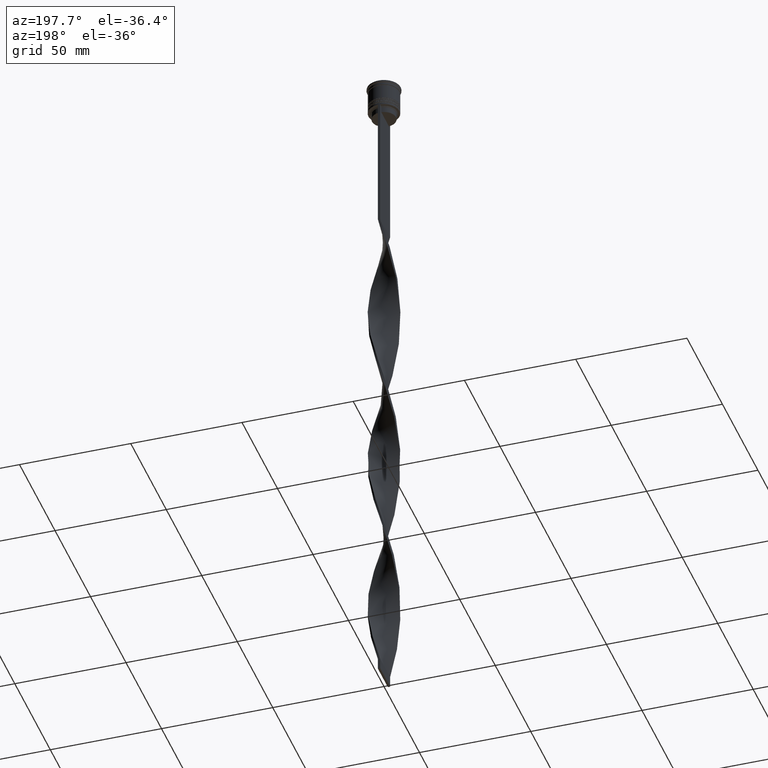
[diagram: clean part render]
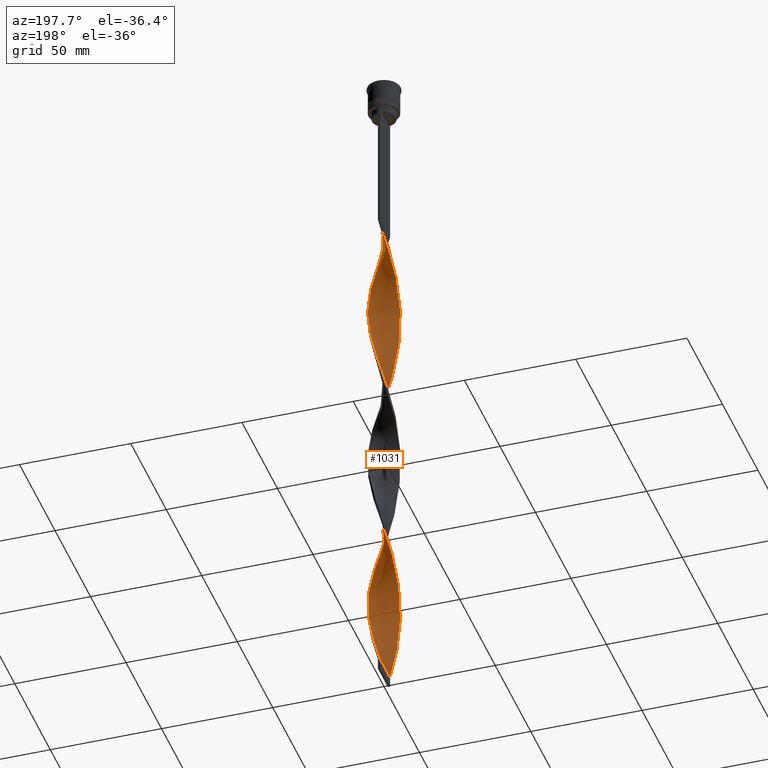
[diagram: same view with one face highlighted and labeled with its STEP entity id]
A machine part, auxiliary view. The second image highlights one B-rep face of the part: STEP entity #1031.
In plain terms, the highlighted face is a freeform B-spline surface patch.
Its self-contained STEP definition (entity closure, byte-faithful):
#5 = CARTESIAN_POINT ( 'NONE',  ( -6.944720379959854917, -1.151482222195765681, -274.3499999999999659 ) ) ;
#10 = CARTESIAN_POINT ( 'NONE',  ( 6.835601151645846585, 1.588885425579184218, -272.3999999999999773 ) ) ;
#23 = CARTESIAN_POINT ( 'NONE',  ( -6.811904111253552330, -1.687590702477055338, -120.2999999999999972 ) ) ;
#24 = CARTESIAN_POINT ( 'NONE',  ( -5.369226334478394591, -4.519005263234783243, -206.0999999999999943 ) ) ;
#30 = CARTESIAN_POINT ( 'NONE',  ( -6.960649146587689629, -1.050911947772330990, -192.4500000000000455 ) ) ;
#46 = CARTESIAN_POINT ( 'NONE',  ( 3.241161289406941926, 6.248993995829446924, -137.8499999999999943 ) ) ;
#47 = CARTESIAN_POINT ( 'NONE',  ( -0.4999999999999991673, 6.999999999999997335, -307.5000000000000000 ) ) ;
#51 = FACE_OUTER_BOUND ( 'NONE', #2154, .T. ) ;
#52 = CARTESIAN_POINT ( 'NONE',  ( 2.126858903386040112, -6.710553156704005318, -235.3500000000000227 ) ) ;
#61 = CARTESIAN_POINT ( 'NONE',  ( -5.369226334478397256, 4.519005263234787684, -96.90000000000001990 ) ) ;
#63 = CARTESIAN_POINT ( 'NONE',  ( 6.999999999999997335, 0.4999999999999995559, -112.5000000000000142 ) ) ;
#69 = CARTESIAN_POINT ( 'NONE',  ( -0.05091194777232943558, 7.039350853412313036, -75.45000000000000284 ) ) ;
#82 = CARTESIAN_POINT ( 'NONE',  ( 6.992035616686076871, -0.6011970849840472253, -108.6000000000000085 ) ) ;
#101 = CARTESIAN_POINT ( 'NONE',  ( 1.050911947772334099, 6.960649146587694069, -227.5500000000000114 ) ) ;
#102 = CARTESIAN_POINT ( 'NONE',  ( -6.992035616686076871, 0.6011970849840481135, -186.5999999999999943 ) ) ;
#113 = CARTESIAN_POINT ( 'NONE',  ( 2.223699182758344772, 6.679087842547245302, -297.7499999999999432 ) ) ;
#122 = CARTESIAN_POINT ( 'NONE',  ( -6.835601151645851026, 1.588885425579185995, -264.6000000000000227 ) ) ;
#123 = CARTESIAN_POINT ( 'NONE',  ( 5.724879761844404946, 4.096437986383643981, -282.1500000000000909 ) ) ;
#131 = CARTESIAN_POINT ( 'NONE',  ( 5.724879761844410275, -4.096437986383645757, -176.8500000000000512 ) ) ;
#140 = CARTESIAN_POINT ( 'NONE',  ( -7.000000000000002665, 0.5000000000000004441, -268.4999999999999432 ) ) ;
#146 = CARTESIAN_POINT ( 'NONE',  ( 4.596194077712559611, -5.303300858899109294, -170.9999999999999716 ) ) ;
#157 = CARTESIAN_POINT ( 'NONE',  ( 3.241161289406943258, -6.248993995829452253, -165.1500000000000341 ) ) ;
#158 = CARTESIAN_POINT ( 'NONE',  ( 2.638647218772207648, -6.502887116878598661, -237.3000000000000114 ) ) ;
#166 = CARTESIAN_POINT ( 'NONE',  ( -4.519005263234788572, -5.369226334478396367, -135.9000000000000341 ) ) ;
#177 = CARTESIAN_POINT ( 'NONE',  ( 5.665029177712287201, -4.178815248312734987, -250.9499999999999602 ) ) ;
#181 = CARTESIAN_POINT ( 'NONE',  ( -3.623436760271013135, -6.010050419448804249, -139.8000000000000114 ) ) ;
#187 = CARTESIAN_POINT ( 'NONE',  ( 1.151482222195765681, 6.944720379959847811, -145.6500000000000341 ) ) ;
#193 = CARTESIAN_POINT ( 'NONE',  ( 6.295221077053192005, 3.150435534158375184, -278.2500000000000000 ) ) ;
#197 = CARTESIAN_POINT ( 'NONE',  ( 4.178815248312736763, -5.665029177712291641, -169.0499999999999829 ) ) ;
#204 = CARTESIAN_POINT ( 'NONE',  ( -4.519005263234783243, 5.369226334478393703, -167.0999999999999943 ) ) ;
#216 = CARTESIAN_POINT ( 'NONE',  ( -4.519005263234788572, -5.369226334478396367, -291.8999999999999773 ) ) ;
#228 = CARTESIAN_POINT ( 'NONE',  ( 5.724879761844405834, 4.096437986383644869, -126.1500000000000057 ) ) ;
#230 = CARTESIAN_POINT ( 'NONE',  ( 4.596194077712559611, -5.303300858899109294, -170.9999999999999716 ) ) ;
#241 = CARTESIAN_POINT ( 'NONE',  ( 1.050911947772328991, -6.960649146587689629, -75.45000000000000284 ) ) ;
#248 = CARTESIAN_POINT ( 'NONE',  ( 3.241161289406941926, 6.248993995829446924, -137.8499999999999943 ) ) ;
#261 = CARTESIAN_POINT ( 'NONE',  ( 4.941572540085925169, -5.013572907112384236, -91.05000000000001137 ) ) ;
#268 = CARTESIAN_POINT ( 'NONE',  ( -1.050911947772328103, 6.960649146587689629, -153.4500000000000171 ) ) ;
#282 = CARTESIAN_POINT ( 'NONE',  ( -1.151482222195766125, 6.944720379959854029, -235.3500000000000227 ) ) ;
#293 = CARTESIAN_POINT ( 'NONE',  ( -6.944720379959848700, 1.151482222195763017, -184.6500000000000057 ) ) ;
#294 = CARTESIAN_POINT ( 'NONE',  ( -5.303300858899108405, -4.596194077712559611, -288.0000000000000568 ) ) ;
#310 = CARTESIAN_POINT ( 'NONE',  ( -2.732430236082644459, 6.464040919188350998, -241.1999999999999886 ) ) ;
#316 = CARTESIAN_POINT ( 'NONE',  ( -2.732430236082644015, -6.464040919188344780, -217.7999999999999829 ) ) ;
#329 = CARTESIAN_POINT ( 'NONE',  ( 6.295221077053192005, 3.150435534158375184, -122.2500000000000142 ) ) ;
#336 = CARTESIAN_POINT ( 'NONE',  ( -5.957011586770866174, 3.709988268859837568, -174.9000000000000057 ) ) ;
#338 = CARTESIAN_POINT ( 'NONE',  ( -6.811904111253552330, -1.687590702477055338, -276.3000000000000114 ) ) ;
#346 = CARTESIAN_POINT ( 'NONE',  ( -6.960649146587694069, 1.050911947772329658, -110.5500000000000114 ) ) ;
#347 = CARTESIAN_POINT ( 'NONE',  ( 6.679087842547246190, -2.223699182758344772, -102.7500000000000284 ) ) ;
#356 = CARTESIAN_POINT ( 'NONE',  ( -1.687590702477056226, -6.811904111253546112, -221.7000000000000171 ) ) ;
#371 = CARTESIAN_POINT ( 'NONE',  ( -1.687590702477055782, 6.811904111253551442, -81.30000000000001137 ) ) ;
#372 = CARTESIAN_POINT ( 'NONE',  ( 1.687590702477054894, 6.811904111253546112, -143.6999999999999886 ) ) ;
#379 = CARTESIAN_POINT ( 'NONE',  ( -5.013572907112381571, -4.941572540085925169, -208.0500000000000398 ) ) ;
#388 = CARTESIAN_POINT ( 'NONE',  ( -5.665029177712285424, 4.178815248312737651, -172.9499999999999886 ) ) ;
#410 = CARTESIAN_POINT ( 'NONE',  ( -6.502887116878603990, 2.638647218772209868, -104.7000000000000171 ) ) ;
#411 = CARTESIAN_POINT ( 'NONE',  ( 6.811904111253546112, -1.687590702477054450, -104.7000000000000171 ) ) ;
#431 = CARTESIAN_POINT ( 'NONE',  ( -6.502887116878603990, 2.638647218772209868, -260.6999999999999886 ) ) ;
#432 = CARTESIAN_POINT ( 'NONE',  ( 1.588885425579184663, -6.835601151645846585, -233.4000000000000057 ) ) ;
#448 = CARTESIAN_POINT ( 'NONE',  ( -2.732430236082644459, 6.464040919188350998, -241.1999999999999886 ) ) ;
#449 = CARTESIAN_POINT ( 'NONE',  ( 7.039350853412307707, -0.05091194777232931762, -266.5500000000000114 ) ) ;
#454 = CARTESIAN_POINT ( 'NONE',  ( -5.369226334478397256, 4.519005263234787684, -96.90000000000001990 ) ) ;
#465 = CARTESIAN_POINT ( 'NONE',  ( 5.369226334478396367, -4.519005263234788572, -174.9000000000000057 ) ) ;
#466 = CARTESIAN_POINT ( 'NONE',  ( 6.248993995829446924, -3.241161289406941926, -254.8500000000000227 ) ) ;
#471 = CARTESIAN_POINT ( 'NONE',  ( -4.178815248312736763, 5.665029177712290753, -91.05000000000001137 ) ) ;
#478 = VERTEX_POINT ( 'NONE', #3784 ) ;
#484 = CARTESIAN_POINT ( 'NONE',  ( -1.687590702477055782, 6.811904111253551442, -237.3000000000000114 ) ) ;
#485 = CARTESIAN_POINT ( 'NONE',  ( 1.151482222195765681, 6.944720379959848700, -301.6500000000000341 ) ) ;
#494 = CARTESIAN_POINT ( 'NONE',  ( -2.126858903386042332, -6.710553156704010647, -145.6500000000000341 ) ) ;
#500 = CARTESIAN_POINT ( 'NONE',  ( 2.732430236082643127, 6.464040919188344780, -139.8000000000000114 ) ) ;
#506 = CARTESIAN_POINT ( 'NONE',  ( 3.709988268859837568, 5.957011586770866174, -291.8999999999999773 ) ) ;
#511 = CARTESIAN_POINT ( 'NONE',  ( -5.013572907112387789, 4.941572540085928722, -94.95000000000001705 ) ) ;
#517 = CARTESIAN_POINT ( 'NONE',  ( -3.623436760271009138, 6.010050419448799808, -163.2000000000000171 ) ) ;
#531 = CARTESIAN_POINT ( 'NONE',  ( -6.295221077053197334, 3.150435534158377848, -102.7500000000000284 ) ) ;
#556 = CARTESIAN_POINT ( 'NONE',  ( -1.588885425579185995, -6.835601151645850138, -303.5999999999999659 ) ) ;
#557 = VECTOR ( 'NONE', #1133, 1000.000000000000000 ) ;
#567 = CARTESIAN_POINT ( 'NONE',  ( 6.464040919188344780, -2.732430236082642683, -100.7999999999999972 ) ) ;
#568 = CARTESIAN_POINT ( 'NONE',  ( 2.732430236082644015, -6.464040919188350998, -163.2000000000000171 ) ) ;
#579 = CARTESIAN_POINT ( 'NONE',  ( -0.5000000000000008882, -7.000000000000002665, -307.5000000000000000 ) ) ;
#586 = CARTESIAN_POINT ( 'NONE',  ( -0.4999999999999991673, 6.999999999999997335, -151.5000000000000284 ) ) ;
#598 = CARTESIAN_POINT ( 'NONE',  ( 1.588885425579186883, 6.835601151645850138, -225.5999999999999943 ) ) ;
#606 = CARTESIAN_POINT ( 'NONE',  ( 3.150435534158376072, -6.295221077053192893, -239.2500000000000284 ) ) ;
#620 = CARTESIAN_POINT ( 'NONE',  ( -7.039350853412313036, -0.05091194777232888741, -270.4500000000000455 ) ) ;
#633 = CARTESIAN_POINT ( 'NONE',  ( -7.039350853412307707, 0.05091194777233333524, -188.5500000000000114 ) ) ;
#634 = CARTESIAN_POINT ( 'NONE',  ( -4.941572540085927834, -5.013572907112386901, -289.9500000000001023 ) ) ;
#648 = CARTESIAN_POINT ( 'NONE',  ( -5.957011586770871503, -3.709988268859838900, -284.1000000000000227 ) ) ;
#655 = CARTESIAN_POINT ( 'NONE',  ( -5.665029177712285424, 4.178815248312737651, -172.9499999999999886 ) ) ;
#667 = CARTESIAN_POINT ( 'NONE',  ( 0.5000000000000000000, 7.000000000000002665, -73.50000000000001421 ) ) ;
#669 = CARTESIAN_POINT ( 'NONE',  ( 5.957011586770867062, -3.709988268859836236, -96.90000000000001990 ) ) ;
#677 = CARTESIAN_POINT ( 'NONE',  ( 2.638647218772207648, -6.502887116878598661, -237.3000000000000114 ) ) ;
#687 = CARTESIAN_POINT ( 'NONE',  ( -2.732430236082644015, -6.464040919188344780, -217.7999999999999829 ) ) ;
#695 = CARTESIAN_POINT ( 'NONE',  ( -5.303300858899104853, 4.596194077712558723, -170.9999999999999716 ) ) ;
#707 = CARTESIAN_POINT ( 'NONE',  ( -2.732430236082644459, 6.464040919188350998, -85.20000000000001705 ) ) ;
#709 = CARTESIAN_POINT ( 'NONE',  ( -4.941572540085925169, 5.013572907112385124, -169.0499999999999829 ) ) ;
#716 = CARTESIAN_POINT ( 'NONE',  ( 1.151482222195765681, 6.944720379959847811, -301.6500000000000341 ) ) ;
#722 = CARTESIAN_POINT ( 'NONE',  ( -3.709988268859839788, 5.957011586770871503, -89.10000000000000853 ) ) ;
#724 = CARTESIAN_POINT ( 'NONE',  ( -4.096437986383643093, 5.724879761844404946, -165.1500000000000341 ) ) ;
#742 = CARTESIAN_POINT ( 'NONE',  ( -6.295221077053198222, 3.150435534158378292, -258.7500000000001137 ) ) ;
#744 = CARTESIAN_POINT ( 'NONE',  ( 4.178815248312734987, 5.665029177712287201, -289.9500000000001023 ) ) ;
#770 = CARTESIAN_POINT ( 'NONE',  ( 3.150435534158381845, 6.295221077053196446, -219.7500000000000284 ) ) ;
#771 = CARTESIAN_POINT ( 'NONE',  ( 6.811904111253546112, -1.687590702477054450, -260.6999999999999886 ) ) ;
#778 = CARTESIAN_POINT ( 'NONE',  ( 6.248993995829454029, 3.241161289406941037, -204.1500000000000341 ) ) ;
#788 = CARTESIAN_POINT ( 'NONE',  ( 7.039350853412313036, 0.05091194777233127439, -192.4500000000000455 ) ) ;
#789 = CARTESIAN_POINT ( 'NONE',  ( 1.687590702477054894, 6.811904111253546112, -299.6999999999999886 ) ) ;
#797 = CARTESIAN_POINT ( 'NONE',  ( 1.687590702477054894, -6.811904111253552330, -159.3000000000000114 ) ) ;
#804 = EDGE_CURVE ( 'NONE', #478, #3177, #1186, .T. ) ;
#807 = CARTESIAN_POINT ( 'NONE',  ( 6.710553156704010647, -2.126858903386039668, -184.6500000000000057 ) ) ;
#815 = CARTESIAN_POINT ( 'NONE',  ( -2.732430236082644459, 6.464040919188350998, -85.20000000000001705 ) ) ;
#820 = CARTESIAN_POINT ( 'NONE',  ( 6.960649146587689629, 1.050911947772328325, -114.4500000000000171 ) ) ;
#829 = CARTESIAN_POINT ( 'NONE',  ( 4.596194077712557835, 5.303300858899104853, -288.0000000000000568 ) ) ;
#837 = CARTESIAN_POINT ( 'NONE',  ( 5.013572907112385124, -4.941572540085931386, -172.9499999999999886 ) ) ;
#842 = CARTESIAN_POINT ( 'NONE',  ( -2.638647218772207204, 6.502887116878599549, -159.3000000000000114 ) ) ;
#854 = CARTESIAN_POINT ( 'NONE',  ( -3.150435534158378292, -6.295221077053197334, -141.7499999999999716 ) ) ;
#862 = CARTESIAN_POINT ( 'NONE',  ( 3.709988268859837568, 5.957011586770866174, -135.9000000000000341 ) ) ;
#873 = CARTESIAN_POINT ( 'NONE',  ( -6.811904111253552330, -1.687590702477055338, -276.3000000000000114 ) ) ;
#881 = CARTESIAN_POINT ( 'NONE',  ( 6.295221077053192893, 3.150435534158375628, -122.2500000000000142 ) ) ;
#883 = CARTESIAN_POINT ( 'NONE',  ( 1.588885425579186883, 6.835601151645850138, -225.5999999999999943 ) ) ;
#898 = CARTESIAN_POINT ( 'NONE',  ( -6.960649146587694958, 1.050911947772329658, -266.5500000000000114 ) ) ;
#911 = CARTESIAN_POINT ( 'NONE',  ( 6.010050419448799808, 3.623436760271010026, -124.2000000000000028 ) ) ;
#912 = CARTESIAN_POINT ( 'NONE',  ( -6.679087842547250631, -2.223699182758345660, -278.2500000000000000 ) ) ;
#922 = CARTESIAN_POINT ( 'NONE',  ( -7.000000000000002665, 0.5000000000000004441, -268.4999999999999432 ) ) ;
#930 = CARTESIAN_POINT ( 'NONE',  ( -6.248993995829448700, 3.241161289406939705, -176.8500000000000227 ) ) ;
#945 = CARTESIAN_POINT ( 'NONE',  ( -6.295221077053197334, 3.150435534158377848, -258.7500000000001137 ) ) ;
#951 = CARTESIAN_POINT ( 'NONE',  ( 5.013572907112383348, 4.941572540085925169, -286.0500000000000114 ) ) ;
#952 = CARTESIAN_POINT ( 'NONE',  ( -6.944720379959854029, -1.151482222195765681, -274.3499999999999659 ) ) ;
#965 = CARTESIAN_POINT ( 'NONE',  ( -7.039350853412313036, -0.05091194777232888741, -114.4500000000000171 ) ) ;
#967 = CARTESIAN_POINT ( 'NONE',  ( 3.623436760271014023, 6.010050419448804249, -217.7999999999999829 ) ) ;
#979 = CARTESIAN_POINT ( 'NONE',  ( 4.941572540085925169, -5.013572907112383348, -247.0500000000000114 ) ) ;
#989 = CARTESIAN_POINT ( 'NONE',  ( -2.223699182758346105, 6.679087842547250631, -83.25000000000000000 ) ) ;
#990 = CARTESIAN_POINT ( 'NONE',  ( -6.999999999999997335, -0.4999999999999987232, -190.5000000000000000 ) ) ;
#997 = CARTESIAN_POINT ( 'NONE',  ( -6.295221077053192005, -3.150435534158377404, -200.2500000000000000 ) ) ;
#998 = CARTESIAN_POINT ( 'NONE',  ( -6.464040919188350998, -2.732430236082644459, -280.1999999999999886 ) ) ;
#1002 = CARTESIAN_POINT ( 'NONE',  ( -2.638647218772210312, -6.502887116878603990, -143.6999999999999886 ) ) ;
#1003 = CARTESIAN_POINT ( 'NONE',  ( -6.248993995829448700, 3.241161289406940149, -176.8500000000000512 ) ) ;
#1010 = CARTESIAN_POINT ( 'NONE',  ( 7.039350853412307707, -0.05091194777232932456, -266.5500000000000114 ) ) ;
#1018 = CARTESIAN_POINT ( 'NONE',  ( -0.4999999999999991673, 6.999999999999997335, -151.5000000000000284 ) ) ;
#1031 = ADVANCED_FACE ( 'NONE', ( #51 ), #1611, .T. ) ;
#1039 = CARTESIAN_POINT ( 'NONE',  ( -6.010050419448804249, 3.623436760271012691, -100.7999999999999972 ) ) ;
#1040 = CARTESIAN_POINT ( 'NONE',  ( -6.710553156704007094, -2.126858903386035671, -196.3500000000000227 ) ) ;
#1057 = CARTESIAN_POINT ( 'NONE',  ( -6.010050419448804249, 3.623436760271012691, -256.8000000000000114 ) ) ;
#1059 = CARTESIAN_POINT ( 'NONE',  ( -6.960649146587689629, -1.050911947772330990, -192.4500000000000171 ) ) ;
#1067 = B_SPLINE_CURVE_WITH_KNOTS ( 'NONE', 3,
 ( #2054, #3331, #1783, #1496 ),
 .UNSPECIFIED., .F., .F.,
 ( 4, 4 ),
 ( 0.000000000000000000, 1.000000000000000000 ),
 .UNSPECIFIED. ) ;
#1077 = CARTESIAN_POINT ( 'NONE',  ( 5.013572907112384236, -4.941572540085930498, -172.9499999999999886 ) ) ;
#1087 = CARTESIAN_POINT ( 'NONE',  ( -1.588885425579185995, -6.835601151645850138, -147.6000000000000227 ) ) ;
#1104 = CARTESIAN_POINT ( 'NONE',  ( -1.050911947772330324, -6.960649146587694069, -149.5500000000000398 ) ) ;
#1105 = CARTESIAN_POINT ( 'NONE',  ( 6.944720379959848700, -1.151482222195765681, -262.6499999999999773 ) ) ;
#1111 = CARTESIAN_POINT ( 'NONE',  ( 6.811904111253552330, 1.687590702477054450, -198.3000000000000114 ) ) ;
#1123 = CARTESIAN_POINT ( 'NONE',  ( 3.623436760271014023, 6.010050419448804249, -217.7999999999999829 ) ) ;
#1130 = CARTESIAN_POINT ( 'NONE',  ( -3.709988268859839788, 5.957011586770871503, -89.10000000000000853 ) ) ;
#1133 = DIRECTION ( 'NONE',  ( 0.000000000000000000, 1.000000000000000000, 0.000000000000000000 ) ) ;
#1136 = CARTESIAN_POINT ( 'NONE',  ( 1.050911947772328991, -6.960649146587689629, -75.45000000000000284 ) ) ;
#1144 = CARTESIAN_POINT ( 'NONE',  ( -7.000000000000002665, 0.5000000000000004441, -112.5000000000000142 ) ) ;
#1150 = CARTESIAN_POINT ( 'NONE',  ( -2.126858903386039223, 6.710553156704006206, -157.3499999999999943 ) ) ;
#1160 = CARTESIAN_POINT ( 'NONE',  ( 6.679087842547246190, -2.223699182758344772, -258.7500000000001137 ) ) ;
#1165 = CARTESIAN_POINT ( 'NONE',  ( 7.039350853412313036, 0.05091194777233126745, -192.4500000000000171 ) ) ;
#1172 = CARTESIAN_POINT ( 'NONE',  ( 6.502887116878599549, 2.638647218772207204, -120.2999999999999972 ) ) ;
#1176 = ORIENTED_EDGE ( 'NONE', *, *, #804, .F. ) ;
#1183 = CARTESIAN_POINT ( 'NONE',  ( -3.709988268859839788, 5.957011586770871503, -245.1000000000000227 ) ) ;
#1186 =( BOUNDED_CURVE ( )  B_SPLINE_CURVE ( 2, ( #667, #3224, #1598, #1915, #371, #989, #707, #3243, #722, #2921, #1675, #3264, #61, #2614, #1039, #2304, #410, #3574, #2594, #346, #1272, #965, #3186, #2878, #23, #1296, #3831, #2245, #3517, #1929, #3203, #1619, #2902, #1315, #2579, #3847, #1002, #3594, #1393, #1104, #3281, #3340, #1700, #2367, #2704, #1732, #568, #157, #2681, #3303, #230, #1077, #465, #2659, #2775, #2318, #1719, #807, #3014, #3730, #3641, #788, #1192, #1503, #2006, #2142, #3943, #3657, #2046, #1413, #1433, #2341, #2382, #3964, #1123, #770, #3620, #3322, #883, #101, #1376, #3086, #3908, #2063, #484, #2028, #448, #3927, #1807, #4033, #2450, #3418, #2958, #2639, #1057, #742, #431, #2978, #122, #2995, #140, #1263, #3132, #952, #338, #912, #998, #1570, #2547, #3802, #294, #634, #4086, #1283, #3176, #2867, #3778, #2503, #2524, #3839, #3107 ),
 .UNSPECIFIED., .F., .T. ) 
 B_SPLINE_CURVE_WITH_KNOTS ( ( 3, 2, 2, 2, 2, 2, 2, 2, 2, 2, 2, 2, 2, 2, 2, 2, 2, 2, 2, 2, 2, 2, 2, 2, 2, 2, 2, 2, 2, 2, 2, 2, 2, 2, 2, 2, 2, 2, 2, 2, 2, 2, 2, 2, 2, 2, 2, 2, 2, 2, 2, 2, 2, 2, 2, 2, 2, 2, 2, 2, 3 ),
 ( 0.000000000000000000, 0.01250000000000000243, 0.02500000000000000486, 0.03749999999999999861, 0.05000000000000000971, 0.06250000000000000000, 0.07499999999999999722, 0.08749999999999998057, 0.1000000000000000194, 0.1125000000000000028, 0.1250000000000000000, 0.1375000000000000111, 0.1499999999999999944, 0.1625000000000000056, 0.1749999999999999611, 0.1875000000000000000, 0.2000000000000000389, 0.2124999999999999944, 0.2250000000000000056, 0.2374999999999999611, 0.2500000000000000000, 0.2625000000000000111, 0.2750000000000000222, 0.2874999999999999778, 0.2999999999999999889, 0.3125000000000000000, 0.3250000000000000111, 0.3375000000000000777, 0.3499999999999999223, 0.3624999999999999889, 0.3750000000000000000, 0.3875000000000000111, 0.4000000000000000777, 0.4124999999999999223, 0.4249999999999999889, 0.4375000000000000000, 0.4500000000000000111, 0.4625000000000000777, 0.4749999999999999223, 0.4874999999999999889, 0.5000000000000000000, 0.5124999999999999556, 0.5250000000000000222, 0.5374999999999999778, 0.5500000000000000444, 0.5625000000000000000, 0.5749999999999999556, 0.5875000000000000222, 0.5999999999999999778, 0.6125000000000000444, 0.6250000000000000000, 0.6374999999999999556, 0.6500000000000000222, 0.6624999999999999778, 0.6750000000000001554, 0.6875000000000000000, 0.6999999999999998446, 0.7125000000000000222, 0.7249999999999999778, 0.7375000000000001554, 0.7500000000000000000 ),
 .UNSPECIFIED. ) 
 CURVE ( )  GEOMETRIC_REPRESENTATION_ITEM ( )  RATIONAL_B_SPLINE_CURVE ( ( 1.000000000000000000, 0.9969173337331279638, 1.000000000000000000, 0.9969173337331279638, 1.000000000000000000, 0.9969173337331279638, 1.000000000000000000, 0.9969173337331279638, 1.000000000000000000, 0.9969173337331279638, 1.000000000000000000, 0.9969173337331279638, 1.000000000000000000, 0.9969173337331279638, 1.000000000000000000, 0.9969173337331279638, 1.000000000000000000, 0.9969173337331279638, 1.000000000000000000, 0.9969173337331279638, 1.000000000000000000, 0.9969173337331279638, 1.000000000000000000, 0.9969173337331279638, 1.000000000000000000, 0.9969173337331279638, 1.000000000000000000, 0.9969173337331279638, 1.000000000000000000, 0.9969173337331279638, 1.000000000000000000, 0.9969173337331279638, 1.000000000000000000, 0.9969173337331279638, 1.000000000000000000, 0.9969173337331279638, 1.000000000000000000, 0.9969173337331279638, 1.000000000000000000, 0.9969173337331279638, 1.000000000000000000, 0.9969173337331279638, 1.000000000000000000, 0.9969173337331279638, 1.000000000000000000, 0.9969173337331279638, 1.000000000000000000, 0.9969173337331279638, 1.000000000000000000, 0.9969173337331279638, 1.000000000000000000, 0.9969173337331279638, 1.000000000000000000, 0.9969173337331279638, 1.000000000000000000, 0.9969173337331279638, 1.000000000000000000, 0.9969173337331279638, 1.000000000000000000, 0.9969173337331279638, 1.000000000000000000, 0.9969173337331279638, 1.000000000000000000, 0.9969173337331279638, 1.000000000000000000, 0.9969173337331279638, 1.000000000000000000, 0.9969173337331279638, 1.000000000000000000, 0.9969173337331279638, 1.000000000000000000, 0.9969173337331279638, 1.000000000000000000, 0.9969173337331279638, 1.000000000000000000, 0.9969173337331279638, 1.000000000000000000, 0.9969173337331279638, 1.000000000000000000, 0.9969173337331279638, 1.000000000000000000, 0.9969173337331279638, 1.000000000000000000, 0.9969173337331279638, 1.000000000000000000, 0.9969173337331279638, 1.000000000000000000, 0.9969173337331279638, 1.000000000000000000, 0.9969173337331279638, 1.000000000000000000, 0.9969173337331279638, 1.000000000000000000, 0.9969173337331279638, 1.000000000000000000, 0.9969173337331279638, 1.000000000000000000, 0.9969173337331279638, 1.000000000000000000, 0.9969173337331279638, 1.000000000000000000, 0.9969173337331279638, 1.000000000000000000, 0.9969173337331279638, 1.000000000000000000, 0.9969173337331279638, 1.000000000000000000, 0.9969173337331279638, 1.000000000000000000, 0.9969173337331279638, 1.000000000000000000, 0.9969173337331279638, 1.000000000000000000, 0.9969173337331279638, 1.000000000000000000, 0.9969173337331279638, 1.000000000000000000, 0.9969173337331279638, 1.000000000000000000, 0.9969173337331279638, 1.000000000000000000 ) ) 
 REPRESENTATION_ITEM ( '' )  );
#1191 = CARTESIAN_POINT ( 'NONE',  ( 2.126858903386040112, -6.710553156704005318, -79.35000000000002274 ) ) ;
#1192 = CARTESIAN_POINT ( 'NONE',  ( 6.992035616686082200, 0.6011970849840463371, -194.4000000000000057 ) ) ;
#1207 = CARTESIAN_POINT ( 'NONE',  ( 3.623436760271010026, -6.010050419448799808, -85.20000000000001705 ) ) ;
#1216 = CARTESIAN_POINT ( 'NONE',  ( 6.999999999999997335, 0.4999999999999995559, -112.5000000000000142 ) ) ;
#1234 = CARTESIAN_POINT ( 'NONE',  ( -5.369226334478397256, 4.519005263234787684, -252.9000000000000057 ) ) ;
#1245 = CARTESIAN_POINT ( 'NONE',  ( -4.596194077712558723, -5.303300858899103964, -210.0000000000000000 ) ) ;
#1256 = CARTESIAN_POINT ( 'NONE',  ( -1.687590702477055782, 6.811904111253551442, -237.3000000000000114 ) ) ;
#1262 = CARTESIAN_POINT ( 'NONE',  ( 6.010050419448799808, 3.623436760271010026, -280.1999999999999886 ) ) ;
#1263 = CARTESIAN_POINT ( 'NONE',  ( -7.039350853412313036, -0.05091194777232888741, -270.4500000000000455 ) ) ;
#1272 = CARTESIAN_POINT ( 'NONE',  ( -7.000000000000002665, 0.5000000000000004441, -112.5000000000000142 ) ) ;
#1274 = CARTESIAN_POINT ( 'NONE',  ( -6.248993995829452253, -3.241161289406943702, -282.1500000000000909 ) ) ;
#1282 = CARTESIAN_POINT ( 'NONE',  ( 5.724879761844405834, 4.096437986383644869, -282.1500000000000909 ) ) ;
#1283 = CARTESIAN_POINT ( 'NONE',  ( -4.096437986383648422, -5.724879761844409387, -293.8500000000000227 ) ) ;
#1296 = CARTESIAN_POINT ( 'NONE',  ( -6.679087842547250631, -2.223699182758345660, -122.2500000000000142 ) ) ;
#1297 = CARTESIAN_POINT ( 'NONE',  ( 0.05091194777232986579, 7.039350853412307707, -149.5500000000000682 ) ) ;
#1308 = CARTESIAN_POINT ( 'NONE',  ( -6.502887116878599549, -2.638647218772206759, -198.3000000000000114 ) ) ;
#1315 = CARTESIAN_POINT ( 'NONE',  ( -4.096437986383648422, -5.724879761844409387, -137.8499999999999943 ) ) ;
#1316 = CARTESIAN_POINT ( 'NONE',  ( -5.724879761844406723, -4.096437986383641316, -204.1500000000000341 ) ) ;
#1323 = CARTESIAN_POINT ( 'NONE',  ( 0.5000000000000000000, 7.000000000000002665, -73.50000000000001421 ) ) ;
#1324 = CARTESIAN_POINT ( 'NONE',  ( 5.957011586770867062, -3.709988268859836236, -252.9000000000000057 ) ) ;
#1329 =( BOUNDED_CURVE ( )  B_SPLINE_CURVE ( 2, ( #3670, #1136, #1853, #1191, #3757, #2167, #2141, #3130, #3106, #1805, #2750, #3397, #2394, #2732, #567, #2099, #3359, #3065, #2431, #1788, #1216, #820, #2473, #3085, #1172, #881, #911, #228, #1768, #3690, #1829, #1461, #862, #248, #500, #3046, #1524, #187, #1543, #3439, #586, #268, #3376, #1150, #842, #2412, #517, #4014, #204, #2887, #695, #655, #336, #930, #1922, #1966, #2236, #293, #2523, #633, #3234, #30, #2213, #3527, #1308, #997, #1904, #3175, #3509, #379, #1245, #2502, #2914, #2187, #316, #1607, #356, #3193, #4105, #2569, #3460, #2254, #3838, #52, #677, #606, #1649, #1939, #4085, #979, #3210, #1632, #1324, #2588, #3777, #1590, #2866, #3857, #1878, #1010, #2273, #3151, #10, #3543, #1569, #2850, #1262, #1282, #3800, #951, #3484, #2546, #3819, #3313, #1342, #113, #2605, #716, #2332, #3918, #1669 ),
 .UNSPECIFIED., .F., .T. ) 
 B_SPLINE_CURVE_WITH_KNOTS ( ( 3, 2, 2, 2, 2, 2, 2, 2, 2, 2, 2, 2, 2, 2, 2, 2, 2, 2, 2, 2, 2, 2, 2, 2, 2, 2, 2, 2, 2, 2, 2, 2, 2, 2, 2, 2, 2, 2, 2, 2, 2, 2, 2, 2, 2, 2, 2, 2, 2, 2, 2, 2, 2, 2, 2, 2, 2, 2, 2, 2, 3 ),
 ( 0.000000000000000000, 0.01250000000000000243, 0.02500000000000000486, 0.03749999999999999861, 0.05000000000000000971, 0.06250000000000000000, 0.07499999999999999722, 0.08749999999999998057, 0.1000000000000000194, 0.1125000000000000028, 0.1250000000000000000, 0.1375000000000000111, 0.1499999999999999944, 0.1625000000000000056, 0.1749999999999999611, 0.1875000000000000000, 0.2000000000000000389, 0.2124999999999999944, 0.2250000000000000056, 0.2374999999999999611, 0.2500000000000000000, 0.2625000000000000111, 0.2750000000000000222, 0.2874999999999999778, 0.2999999999999999889, 0.3125000000000000000, 0.3250000000000000111, 0.3375000000000000777, 0.3499999999999999223, 0.3624999999999999889, 0.3750000000000000000, 0.3875000000000000111, 0.4000000000000000777, 0.4124999999999999223, 0.4249999999999999889, 0.4375000000000000000, 0.4500000000000000111, 0.4625000000000000777, 0.4749999999999999223, 0.4874999999999999889, 0.5000000000000000000, 0.5124999999999999556, 0.5250000000000000222, 0.5374999999999999778, 0.5500000000000000444, 0.5625000000000000000, 0.5749999999999999556, 0.5875000000000000222, 0.5999999999999999778, 0.6125000000000000444, 0.6250000000000000000, 0.6374999999999999556, 0.6500000000000000222, 0.6624999999999999778, 0.6750000000000001554, 0.6875000000000000000, 0.6999999999999998446, 0.7125000000000000222, 0.7249999999999999778, 0.7375000000000001554, 0.7500000000000000000 ),
 .UNSPECIFIED. ) 
 CURVE ( )  GEOMETRIC_REPRESENTATION_ITEM ( )  RATIONAL_B_SPLINE_CURVE ( ( 1.000000000000000000, 0.9969173337331279638, 1.000000000000000000, 0.9969173337331279638, 1.000000000000000000, 0.9969173337331279638, 1.000000000000000000, 0.9969173337331279638, 1.000000000000000000, 0.9969173337331279638, 1.000000000000000000, 0.9969173337331279638, 1.000000000000000000, 0.9969173337331279638, 1.000000000000000000, 0.9969173337331279638, 1.000000000000000000, 0.9969173337331279638, 1.000000000000000000, 0.9969173337331279638, 1.000000000000000000, 0.9969173337331279638, 1.000000000000000000, 0.9969173337331279638, 1.000000000000000000, 0.9969173337331279638, 1.000000000000000000, 0.9969173337331279638, 1.000000000000000000, 0.9969173337331279638, 1.000000000000000000, 0.9969173337331279638, 1.000000000000000000, 0.9969173337331279638, 1.000000000000000000, 0.9969173337331279638, 1.000000000000000000, 0.9969173337331279638, 1.000000000000000000, 0.9969173337331279638, 1.000000000000000000, 0.9969173337331279638, 1.000000000000000000, 0.9969173337331279638, 1.000000000000000000, 0.9969173337331279638, 1.000000000000000000, 0.9969173337331279638, 1.000000000000000000, 0.9969173337331279638, 1.000000000000000000, 0.9969173337331279638, 1.000000000000000000, 0.9969173337331279638, 1.000000000000000000, 0.9969173337331279638, 1.000000000000000000, 0.9969173337331279638, 1.000000000000000000, 0.9969173337331279638, 1.000000000000000000, 0.9969173337331279638, 1.000000000000000000, 0.9969173337331279638, 1.000000000000000000, 0.9969173337331279638, 1.000000000000000000, 0.9969173337331279638, 1.000000000000000000, 0.9969173337331279638, 1.000000000000000000, 0.9969173337331279638, 1.000000000000000000, 0.9969173337331279638, 1.000000000000000000, 0.9969173337331279638, 1.000000000000000000, 0.9969173337331279638, 1.000000000000000000, 0.9969173337331279638, 1.000000000000000000, 0.9969173337331279638, 1.000000000000000000, 0.9969173337331279638, 1.000000000000000000, 0.9969173337331279638, 1.000000000000000000, 0.9969173337331279638, 1.000000000000000000, 0.9969173337331279638, 1.000000000000000000, 0.9969173337331279638, 1.000000000000000000, 0.9969173337331279638, 1.000000000000000000, 0.9969173337331279638, 1.000000000000000000, 0.9969173337331279638, 1.000000000000000000, 0.9969173337331279638, 1.000000000000000000, 0.9969173337331279638, 1.000000000000000000, 0.9969173337331279638, 1.000000000000000000, 0.9969173337331279638, 1.000000000000000000, 0.9969173337331279638, 1.000000000000000000, 0.9969173337331279638, 1.000000000000000000, 0.9969173337331279638, 1.000000000000000000, 0.9969173337331279638, 1.000000000000000000, 0.9969173337331279638, 1.000000000000000000, 0.9969173337331279638, 1.000000000000000000, 0.9969173337331279638, 1.000000000000000000 ) ) 
 REPRESENTATION_ITEM ( '' )  );
#1335 = CARTESIAN_POINT ( 'NONE',  ( 4.178815248312734987, 5.665029177712287201, -133.9500000000000455 ) ) ;
#1342 = CARTESIAN_POINT ( 'NONE',  ( 2.732430236082643127, 6.464040919188344780, -295.8000000000000114 ) ) ;
#1355 = CARTESIAN_POINT ( 'NONE',  ( -5.957011586770866174, 3.709988268859837568, -174.9000000000000057 ) ) ;
#1376 = CARTESIAN_POINT ( 'NONE',  ( 0.5000000000000000000, 7.000000000000002665, -229.5000000000000000 ) ) ;
#1377 = CARTESIAN_POINT ( 'NONE',  ( 6.944720379959848700, -1.151482222195765681, -106.6500000000000199 ) ) ;
#1393 = CARTESIAN_POINT ( 'NONE',  ( -1.588885425579185995, -6.835601151645850138, -147.6000000000000227 ) ) ;
#1394 = CARTESIAN_POINT ( 'NONE',  ( 3.241161289406941926, 6.248993995829446924, -293.8500000000000227 ) ) ;
#1401 = CARTESIAN_POINT ( 'NONE',  ( -2.223699182758346105, 6.679087842547251519, -83.25000000000000000 ) ) ;
#1413 = CARTESIAN_POINT ( 'NONE',  ( 5.665029177712290753, 4.178815248312739428, -208.0500000000000398 ) ) ;
#1420 = CARTESIAN_POINT ( 'NONE',  ( 6.010050419448804249, -3.623436760271013579, -178.8000000000000114 ) ) ;
#1433 = CARTESIAN_POINT ( 'NONE',  ( 5.303300858899109294, 4.596194077712558723, -210.0000000000000000 ) ) ;
#1434 = CARTESIAN_POINT ( 'NONE',  ( 6.464040919188344780, -2.732430236082642683, -256.8000000000000114 ) ) ;
#1439 = CARTESIAN_POINT ( 'NONE',  ( 6.710553156704011535, -2.126858903386039668, -184.6500000000000057 ) ) ;
#1449 = CARTESIAN_POINT ( 'NONE',  ( 6.010050419448799808, 3.623436760271010026, -280.1999999999999886 ) ) ;
#1454 = CARTESIAN_POINT ( 'NONE',  ( -6.944720379959854917, -1.151482222195765681, -118.3500000000000085 ) ) ;
#1461 = CARTESIAN_POINT ( 'NONE',  ( 4.178815248312734987, 5.665029177712287201, -133.9500000000000455 ) ) ;
#1471 = CARTESIAN_POINT ( 'NONE',  ( -6.464040919188350998, -2.732430236082644459, -124.2000000000000028 ) ) ;
#1493 = CARTESIAN_POINT ( 'NONE',  ( -6.710553156704010647, 2.126858903386041888, -262.6499999999999773 ) ) ;
#1496 = CARTESIAN_POINT ( 'NONE',  ( -0.4999999999999991673, 6.999999999999997335, -307.5000000000000000 ) ) ;
#1503 = CARTESIAN_POINT ( 'NONE',  ( 6.944720379959854917, 1.151482222195761684, -196.3500000000000227 ) ) ;
#1516 = CARTESIAN_POINT ( 'NONE',  ( 2.126858903386040112, -6.710553156704005318, -79.35000000000002274 ) ) ;
#1524 = CARTESIAN_POINT ( 'NONE',  ( 1.687590702477054894, 6.811904111253546112, -143.6999999999999886 ) ) ;
#1536 = CARTESIAN_POINT ( 'NONE',  ( 5.303300858899104853, -4.596194077712557835, -93.00000000000001421 ) ) ;
#1543 = CARTESIAN_POINT ( 'NONE',  ( 0.6011970849840476694, 6.992035616686076871, -147.6000000000000227 ) ) ;
#1558 = CARTESIAN_POINT ( 'NONE',  ( 2.126858903386039668, 6.710553156704011535, -223.6500000000000341 ) ) ;
#1569 = CARTESIAN_POINT ( 'NONE',  ( 6.502887116878599549, 2.638647218772207204, -276.3000000000000114 ) ) ;
#1570 = CARTESIAN_POINT ( 'NONE',  ( -6.248993995829452253, -3.241161289406943702, -282.1500000000000909 ) ) ;
#1585 = CARTESIAN_POINT ( 'NONE',  ( -6.992035616686082200, -0.6011970849840472253, -272.3999999999999773 ) ) ;
#1590 = CARTESIAN_POINT ( 'NONE',  ( 6.679087842547245302, -2.223699182758344772, -258.7500000000001137 ) ) ;
#1598 = CARTESIAN_POINT ( 'NONE',  ( -0.6011970849840476694, 6.992035616686082200, -77.40000000000000568 ) ) ;
#1599 = CARTESIAN_POINT ( 'NONE',  ( 7.039350853412307707, -0.05091194777232931762, -110.5500000000000114 ) ) ;
#1607 = CARTESIAN_POINT ( 'NONE',  ( -2.223699182758348769, -6.679087842547244414, -219.7500000000000284 ) ) ;
#1611 =( BOUNDED_SURFACE ( )  B_SPLINE_SURFACE ( 1, 2, ( 
 ( #1323, #69, #2603, #3874, #3059, #1401, #815, #3679, #1130, #471, #3986, #511, #454, #3025, #3647, #531, #2389, #1781, #3002, #3663, #1144, #3041, #1799, #1454, #3969, #1739, #1471, #2373, #1762, #2689, #4003, #3632, #166, #2093, #181, #854, #2068, #494, #1087, #3347, #2111, #2724, #1723, #3954, #797, #3387, #3312, #2402, #2035, #197, #146, #837, #3934, #131, #1420, #2709, #2051, #1439, #2740, #2351, #3370, #1165, #3327, #2423, #1111, #3702, #2668, #778, #3453, #3169, #2495, #4023, #3812, #1869, #967, #4072, #3142, #1558, #598, #3745, #2159, #2789, #1894, #282, #1256, #2842, #310, #3769, #1183, #2227, #4098, #3503, #1234, #2515, #3792, #945, #2204, #1493, #3477, #898, #922, #620, #1585, #5, #873, #3720, #2860, #1274, #648, #2439, #2539, #3074, #216, #2181, #2765, #2134, #3430, #3405, #556, #1822, #579 ),
 ( #3098, #241, #1844, #1516, #4048, #2813, #1207, #2463, #3121, #261, #1536, #1620, #669, #2904, #3245, #347, #411, #1377, #82, #1599, #63, #2939, #3576, #1916, #1677, #329, #3265, #3869, #1952, #1660, #1990, #1335, #2562, #46, #2596, #2246, #372, #1642, #3187, #1297, #1018, #2879, #2320, #3226, #2285, #3205, #3558, #724, #3832, #709, #2960, #388, #1355, #1003, #1974, #2580, #2615, #3891, #102, #2641, #990, #1059, #2923, #1040, #2305, #3910, #3597, #1316, #24, #3519, #1931, #3848, #2266, #3536, #687, #2008, #3283, #3674, #2979, #2682, #2383, #2047, #432, #2660, #158, #1733, #3621, #2397, #3037, #1701, #3642, #177, #3304, #466, #1434, #1160, #771, #1105, #3998, #449, #2029, #1720, #2064, #2997, #3366, #193, #1449, #123, #3016, #1756, #829, #744, #506, #1394, #2087, #2705, #789, #485, #1776, #3965, #3928 ) ),
 .UNSPECIFIED., .F., .F., .F. ) 
 B_SPLINE_SURFACE_WITH_KNOTS ( ( 2, 2 ),
 ( 3, 2, 2, 2, 2, 2, 2, 2, 2, 2, 2, 2, 2, 2, 2, 2, 2, 2, 2, 2, 2, 2, 2, 2, 2, 2, 2, 2, 2, 2, 2, 2, 2, 2, 2, 2, 2, 2, 2, 2, 2, 2, 2, 2, 2, 2, 2, 2, 2, 2, 2, 2, 2, 2, 2, 2, 2, 2, 2, 2, 3 ),
 ( 0.000000000000000000, 1.000000000000000000 ),
 ( 0.000000000000000000, 0.01250000000000000069, 0.02500000000000000139, 0.03749999999999999861, 0.05000000000000000278, 0.06250000000000000000, 0.07499999999999999722, 0.08749999999999999445, 0.1000000000000000056, 0.1125000000000000028, 0.1250000000000000000, 0.1375000000000000111, 0.1499999999999999944, 0.1625000000000000056, 0.1749999999999999889, 0.1875000000000000000, 0.2000000000000000111, 0.2124999999999999944, 0.2250000000000000056, 0.2374999999999999889, 0.2500000000000000000, 0.2625000000000000111, 0.2750000000000000222, 0.2874999999999999778, 0.2999999999999999889, 0.3125000000000000000, 0.3250000000000000111, 0.3375000000000000222, 0.3499999999999999778, 0.3624999999999999889, 0.3750000000000000000, 0.3875000000000000111, 0.4000000000000000222, 0.4124999999999999778, 0.4249999999999999889, 0.4375000000000000000, 0.4500000000000000111, 0.4625000000000000222, 0.4749999999999999778, 0.4874999999999999889, 0.5000000000000000000, 0.5124999999999999556, 0.5250000000000000222, 0.5374999999999999778, 0.5500000000000000444, 0.5625000000000000000, 0.5749999999999999556, 0.5875000000000000222, 0.5999999999999999778, 0.6125000000000000444, 0.6250000000000000000, 0.6374999999999999556, 0.6500000000000000222, 0.6624999999999999778, 0.6750000000000000444, 0.6875000000000000000, 0.6999999999999999556, 0.7125000000000000222, 0.7249999999999999778, 0.7375000000000000444, 0.7500000000000000000 ),
 .UNSPECIFIED. ) 
 GEOMETRIC_REPRESENTATION_ITEM ( )  RATIONAL_B_SPLINE_SURFACE ( (
 ( 1.000000000000000000, 0.9969173337331279638, 1.000000000000000000, 0.9969173337331279638, 1.000000000000000000, 0.9969173337331279638, 1.000000000000000000, 0.9969173337331279638, 1.000000000000000000, 0.9969173337331279638, 1.000000000000000000, 0.9969173337331279638, 1.000000000000000000, 0.9969173337331279638, 1.000000000000000000, 0.9969173337331279638, 1.000000000000000000, 0.9969173337331279638, 1.000000000000000000, 0.9969173337331279638, 1.000000000000000000, 0.9969173337331279638, 1.000000000000000000, 0.9969173337331279638, 1.000000000000000000, 0.9969173337331279638, 1.000000000000000000, 0.9969173337331279638, 1.000000000000000000, 0.9969173337331279638, 1.000000000000000000, 0.9969173337331279638, 1.000000000000000000, 0.9969173337331279638, 1.000000000000000000, 0.9969173337331279638, 1.000000000000000000, 0.9969173337331279638, 1.000000000000000000, 0.9969173337331279638, 1.000000000000000000, 0.9969173337331279638, 1.000000000000000000, 0.9969173337331279638, 1.000000000000000000, 0.9969173337331279638, 1.000000000000000000, 0.9969173337331279638, 1.000000000000000000, 0.9969173337331279638, 1.000000000000000000, 0.9969173337331279638, 1.000000000000000000, 0.9969173337331279638, 1.000000000000000000, 0.9969173337331279638, 1.000000000000000000, 0.9969173337331279638, 1.000000000000000000, 0.9969173337331279638, 1.000000000000000000, 0.9969173337331279638, 1.000000000000000000, 0.9969173337331279638, 1.000000000000000000, 0.9969173337331279638, 1.000000000000000000, 0.9969173337331279638, 1.000000000000000000, 0.9969173337331279638, 1.000000000000000000, 0.9969173337331279638, 1.000000000000000000, 0.9969173337331279638, 1.000000000000000000, 0.9969173337331279638, 1.000000000000000000, 0.9969173337331279638, 1.000000000000000000, 0.9969173337331279638, 1.000000000000000000, 0.9969173337331279638, 1.000000000000000000, 0.9969173337331279638, 1.000000000000000000, 0.9969173337331279638, 1.000000000000000000, 0.9969173337331279638, 1.000000000000000000, 0.9969173337331279638, 1.000000000000000000, 0.9969173337331279638, 1.000000000000000000, 0.9969173337331279638, 1.000000000000000000, 0.9969173337331279638, 1.000000000000000000, 0.9969173337331279638, 1.000000000000000000, 0.9969173337331279638, 1.000000000000000000, 0.9969173337331279638, 1.000000000000000000, 0.9969173337331279638, 1.000000000000000000, 0.9969173337331279638, 1.000000000000000000, 0.9969173337331279638, 1.000000000000000000, 0.9969173337331279638, 1.000000000000000000, 0.9969173337331279638, 1.000000000000000000, 0.9969173337331279638, 1.000000000000000000, 0.9969173337331279638, 1.000000000000000000, 0.9969173337331279638, 1.000000000000000000, 0.9969173337331279638, 1.000000000000000000),
 ( 1.000000000000000000, 0.9969173337331279638, 1.000000000000000000, 0.9969173337331279638, 1.000000000000000000, 0.9969173337331279638, 1.000000000000000000, 0.9969173337331279638, 1.000000000000000000, 0.9969173337331279638, 1.000000000000000000, 0.9969173337331279638, 1.000000000000000000, 0.9969173337331279638, 1.000000000000000000, 0.9969173337331279638, 1.000000000000000000, 0.9969173337331279638, 1.000000000000000000, 0.9969173337331279638, 1.000000000000000000, 0.9969173337331279638, 1.000000000000000000, 0.9969173337331279638, 1.000000000000000000, 0.9969173337331279638, 1.000000000000000000, 0.9969173337331279638, 1.000000000000000000, 0.9969173337331279638, 1.000000000000000000, 0.9969173337331279638, 1.000000000000000000, 0.9969173337331279638, 1.000000000000000000, 0.9969173337331279638, 1.000000000000000000, 0.9969173337331279638, 1.000000000000000000, 0.9969173337331279638, 1.000000000000000000, 0.9969173337331279638, 1.000000000000000000, 0.9969173337331279638, 1.000000000000000000, 0.9969173337331279638, 1.000000000000000000, 0.9969173337331279638, 1.000000000000000000, 0.9969173337331279638, 1.000000000000000000, 0.9969173337331279638, 1.000000000000000000, 0.9969173337331279638, 1.000000000000000000, 0.9969173337331279638, 1.000000000000000000, 0.9969173337331279638, 1.000000000000000000, 0.9969173337331279638, 1.000000000000000000, 0.9969173337331279638, 1.000000000000000000, 0.9969173337331279638, 1.000000000000000000, 0.9969173337331279638, 1.000000000000000000, 0.9969173337331279638, 1.000000000000000000, 0.9969173337331279638, 1.000000000000000000, 0.9969173337331279638, 1.000000000000000000, 0.9969173337331279638, 1.000000000000000000, 0.9969173337331279638, 1.000000000000000000, 0.9969173337331279638, 1.000000000000000000, 0.9969173337331279638, 1.000000000000000000, 0.9969173337331279638, 1.000000000000000000, 0.9969173337331279638, 1.000000000000000000, 0.9969173337331279638, 1.000000000000000000, 0.9969173337331279638, 1.000000000000000000, 0.9969173337331279638, 1.000000000000000000, 0.9969173337331279638, 1.000000000000000000, 0.9969173337331279638, 1.000000000000000000, 0.9969173337331279638, 1.000000000000000000, 0.9969173337331279638, 1.000000000000000000, 0.9969173337331279638, 1.000000000000000000, 0.9969173337331279638, 1.000000000000000000, 0.9969173337331279638, 1.000000000000000000, 0.9969173337331279638, 1.000000000000000000, 0.9969173337331279638, 1.000000000000000000, 0.9969173337331279638, 1.000000000000000000, 0.9969173337331279638, 1.000000000000000000, 0.9969173337331279638, 1.000000000000000000, 0.9969173337331279638, 1.000000000000000000, 0.9969173337331279638, 1.000000000000000000, 0.9969173337331279638, 1.000000000000000000) ) ) 
 REPRESENTATION_ITEM ( '' )  SURFACE ( )  );
#1619 = CARTESIAN_POINT ( 'NONE',  ( -4.941572540085927834, -5.013572907112386901, -133.9500000000000455 ) ) ;
#1620 = CARTESIAN_POINT ( 'NONE',  ( 5.665029177712287201, -4.178815248312734987, -94.95000000000001705 ) ) ;
#1632 = CARTESIAN_POINT ( 'NONE',  ( 5.665029177712287201, -4.178815248312734987, -250.9500000000000171 ) ) ;
#1642 = CARTESIAN_POINT ( 'NONE',  ( 1.151482222195765681, 6.944720379959848700, -145.6500000000000341 ) ) ;
#1649 = CARTESIAN_POINT ( 'NONE',  ( 3.623436760271010026, -6.010050419448799808, -241.1999999999999886 ) ) ;
#1660 = CARTESIAN_POINT ( 'NONE',  ( 5.013572907112384236, 4.941572540085925169, -130.0499999999999829 ) ) ;
#1669 = CARTESIAN_POINT ( 'NONE',  ( -0.4999999999999991673, 6.999999999999997335, -307.5000000000000000 ) ) ;
#1675 = CARTESIAN_POINT ( 'NONE',  ( -4.596194077712561388, 5.303300858899108405, -93.00000000000001421 ) ) ;
#1677 = CARTESIAN_POINT ( 'NONE',  ( 6.502887116878599549, 2.638647218772207204, -120.2999999999999972 ) ) ;
#1700 = CARTESIAN_POINT ( 'NONE',  ( 0.6011970849840465592, -6.992035616686082200, -155.4000000000000057 ) ) ;
#1701 = CARTESIAN_POINT ( 'NONE',  ( 4.941572540085925169, -5.013572907112384236, -247.0500000000000114 ) ) ;
#1719 = CARTESIAN_POINT ( 'NONE',  ( 6.502887116878603990, -2.638647218772210756, -182.6999999999999886 ) ) ;
#1720 = CARTESIAN_POINT ( 'NONE',  ( 6.960649146587689629, 1.050911947772328325, -270.4500000000000455 ) ) ;
#1723 = CARTESIAN_POINT ( 'NONE',  ( 0.6011970849840465592, -6.992035616686082200, -155.4000000000000057 ) ) ;
#1732 = CARTESIAN_POINT ( 'NONE',  ( 2.223699182758345216, -6.679087842547251519, -161.2500000000000284 ) ) ;
#1733 = CARTESIAN_POINT ( 'NONE',  ( 3.150435534158375628, -6.295221077053192005, -239.2500000000000000 ) ) ;
#1739 = CARTESIAN_POINT ( 'NONE',  ( -6.679087842547251519, -2.223699182758345660, -122.2500000000000142 ) ) ;
#1756 = CARTESIAN_POINT ( 'NONE',  ( 5.013572907112384236, 4.941572540085925169, -286.0500000000000114 ) ) ;
#1762 = CARTESIAN_POINT ( 'NONE',  ( -5.957011586770871503, -3.709988268859838900, -128.0999999999999943 ) ) ;
#1768 = CARTESIAN_POINT ( 'NONE',  ( 5.369226334478393703, 4.519005263234783243, -128.0999999999999943 ) ) ;
#1776 = CARTESIAN_POINT ( 'NONE',  ( 0.6011970849840476694, 6.992035616686076871, -303.5999999999999659 ) ) ;
#1781 = CARTESIAN_POINT ( 'NONE',  ( -6.710553156704010647, 2.126858903386041888, -106.6500000000000199 ) ) ;
#1783 = CARTESIAN_POINT ( 'NONE',  ( -0.4999999999999996669, 2.333333333333331261, -307.5000000000000000 ) ) ;
#1788 = CARTESIAN_POINT ( 'NONE',  ( 7.039350853412307707, -0.05091194777232932456, -110.5500000000000114 ) ) ;
#1799 = CARTESIAN_POINT ( 'NONE',  ( -6.992035616686082200, -0.6011970849840472253, -116.4000000000000057 ) ) ;
#1805 = CARTESIAN_POINT ( 'NONE',  ( 4.941572540085925169, -5.013572907112383348, -91.05000000000001137 ) ) ;
#1807 = CARTESIAN_POINT ( 'NONE',  ( -3.709988268859839788, 5.957011586770871503, -245.1000000000000227 ) ) ;
#1822 = CARTESIAN_POINT ( 'NONE',  ( -1.050911947772330324, -6.960649146587694958, -305.5500000000000114 ) ) ;
#1829 = CARTESIAN_POINT ( 'NONE',  ( 4.596194077712557835, 5.303300858899104853, -132.0000000000000000 ) ) ;
#1844 = CARTESIAN_POINT ( 'NONE',  ( 1.588885425579184663, -6.835601151645846585, -77.40000000000000568 ) ) ;
#1853 = CARTESIAN_POINT ( 'NONE',  ( 1.588885425579184663, -6.835601151645846585, -77.40000000000000568 ) ) ;
#1869 = CARTESIAN_POINT ( 'NONE',  ( 4.096437986383647534, 5.724879761844409387, -215.8500000000000512 ) ) ;
#1878 = CARTESIAN_POINT ( 'NONE',  ( 6.992035616686076871, -0.6011970849840472253, -264.6000000000000227 ) ) ;
#1894 = CARTESIAN_POINT ( 'NONE',  ( -0.6011970849840476694, 6.992035616686082200, -233.4000000000000057 ) ) ;
#1904 = CARTESIAN_POINT ( 'NONE',  ( -6.010050419448800696, -3.623436760271009138, -202.1999999999999886 ) ) ;
#1915 = CARTESIAN_POINT ( 'NONE',  ( -1.151482222195766125, 6.944720379959853140, -79.35000000000002274 ) ) ;
#1916 = CARTESIAN_POINT ( 'NONE',  ( 6.710553156704006206, 2.126858903386039668, -118.3500000000000085 ) ) ;
#1922 = CARTESIAN_POINT ( 'NONE',  ( -6.464040919188344780, 2.732430236082643571, -178.8000000000000114 ) ) ;
#1929 = CARTESIAN_POINT ( 'NONE',  ( -5.665029177712290753, -4.178815248312736763, -130.0500000000000114 ) ) ;
#1931 = CARTESIAN_POINT ( 'NONE',  ( -4.596194077712558723, -5.303300858899103964, -210.0000000000000000 ) ) ;
#1939 = CARTESIAN_POINT ( 'NONE',  ( 4.096437986383644869, -5.724879761844405834, -243.1500000000000057 ) ) ;
#1952 = CARTESIAN_POINT ( 'NONE',  ( 5.369226334478393703, 4.519005263234783243, -128.0999999999999943 ) ) ;
#1966 = CARTESIAN_POINT ( 'NONE',  ( -6.679087842547244414, 2.223699182758348325, -180.7500000000000568 ) ) ;
#1974 = CARTESIAN_POINT ( 'NONE',  ( -6.464040919188344780, 2.732430236082643571, -178.8000000000000114 ) ) ;
#1990 = CARTESIAN_POINT ( 'NONE',  ( 4.596194077712557835, 5.303300858899104853, -132.0000000000000000 ) ) ;
#2005 = VERTEX_POINT ( 'NONE', #47 ) ;
#2006 = CARTESIAN_POINT ( 'NONE',  ( 6.811904111253552330, 1.687590702477054450, -198.3000000000000114 ) ) ;
#2008 = CARTESIAN_POINT ( 'NONE',  ( -2.223699182758348769, -6.679087842547244414, -219.7500000000000284 ) ) ;
#2028 = CARTESIAN_POINT ( 'NONE',  ( -2.223699182758346105, 6.679087842547250631, -239.2500000000000284 ) ) ;
#2029 = CARTESIAN_POINT ( 'NONE',  ( 6.999999999999997335, 0.4999999999999995559, -268.4999999999999432 ) ) ;
#2035 = CARTESIAN_POINT ( 'NONE',  ( 3.709988268859838900, -5.957011586770871503, -167.0999999999999943 ) ) ;
#2046 = CARTESIAN_POINT ( 'NONE',  ( 5.957011586770871503, 3.709988268859838012, -206.0999999999999943 ) ) ;
#2047 = CARTESIAN_POINT ( 'NONE',  ( 1.050911947772328991, -6.960649146587689629, -231.4500000000000455 ) ) ;
#2051 = CARTESIAN_POINT ( 'NONE',  ( 6.502887116878603990, -2.638647218772210756, -182.6999999999999886 ) ) ;
#2054 = CARTESIAN_POINT ( 'NONE',  ( -0.5000000000000008882, -7.000000000000002665, -307.5000000000000000 ) ) ;
#2063 = CARTESIAN_POINT ( 'NONE',  ( -1.151482222195766125, 6.944720379959853140, -235.3500000000000227 ) ) ;
#2064 = CARTESIAN_POINT ( 'NONE',  ( 6.835601151645846585, 1.588885425579184218, -272.3999999999999773 ) ) ;
#2068 = CARTESIAN_POINT ( 'NONE',  ( -2.638647218772210312, -6.502887116878603990, -143.6999999999999886 ) ) ;
#2087 = CARTESIAN_POINT ( 'NONE',  ( 2.732430236082643127, 6.464040919188344780, -295.8000000000000114 ) ) ;
#2093 = CARTESIAN_POINT ( 'NONE',  ( -4.096437986383648422, -5.724879761844408499, -137.8499999999999943 ) ) ;
#2099 = CARTESIAN_POINT ( 'NONE',  ( 6.679087842547245302, -2.223699182758344772, -102.7500000000000284 ) ) ;
#2111 = CARTESIAN_POINT ( 'NONE',  ( -0.5000000000000008882, -7.000000000000002665, -151.5000000000000284 ) ) ;
#2134 = CARTESIAN_POINT ( 'NONE',  ( -3.150435534158378292, -6.295221077053197334, -297.7499999999999432 ) ) ;
#2141 = CARTESIAN_POINT ( 'NONE',  ( 3.623436760271010026, -6.010050419448799808, -85.20000000000001705 ) ) ;
#2142 = CARTESIAN_POINT ( 'NONE',  ( 6.679087842547249743, 2.223699182758347881, -200.2500000000000000 ) ) ;
#2154 = EDGE_LOOP ( 'NONE', ( #3491, #3091, #3063, #1176 ) ) ;
#2159 = CARTESIAN_POINT ( 'NONE',  ( 0.5000000000000000000, 7.000000000000002665, -229.5000000000000000 ) ) ;
#2167 = CARTESIAN_POINT ( 'NONE',  ( 3.150435534158376072, -6.295221077053192893, -83.25000000000000000 ) ) ;
#2181 = CARTESIAN_POINT ( 'NONE',  ( -4.096437986383648422, -5.724879761844408499, -293.8500000000000227 ) ) ;
#2187 = CARTESIAN_POINT ( 'NONE',  ( -3.241161289406940149, -6.248993995829447812, -215.8500000000000512 ) ) ;
#2204 = CARTESIAN_POINT ( 'NONE',  ( -6.502887116878603990, 2.638647218772209868, -260.6999999999999886 ) ) ;
#2213 = CARTESIAN_POINT ( 'NONE',  ( -6.835601151645846585, -1.588885425579183330, -194.4000000000000057 ) ) ;
#2227 = CARTESIAN_POINT ( 'NONE',  ( -4.178815248312736763, 5.665029177712290753, -247.0500000000000114 ) ) ;
#2236 = CARTESIAN_POINT ( 'NONE',  ( -6.811904111253546112, 1.687590702477055338, -182.6999999999999886 ) ) ;
#2245 = CARTESIAN_POINT ( 'NONE',  ( -6.248993995829452253, -3.241161289406943702, -126.1500000000000057 ) ) ;
#2246 = CARTESIAN_POINT ( 'NONE',  ( 2.223699182758344772, 6.679087842547246190, -141.7499999999999716 ) ) ;
#2254 = CARTESIAN_POINT ( 'NONE',  ( 1.050911947772328991, -6.960649146587689629, -231.4500000000000171 ) ) ;
#2266 = CARTESIAN_POINT ( 'NONE',  ( -3.709988268859838456, -5.957011586770866174, -213.9000000000000057 ) ) ;
#2273 = CARTESIAN_POINT ( 'NONE',  ( 6.999999999999997335, 0.4999999999999995559, -268.4999999999999432 ) ) ;
#2285 = CARTESIAN_POINT ( 'NONE',  ( -2.638647218772207204, 6.502887116878599549, -159.3000000000000114 ) ) ;
#2304 = CARTESIAN_POINT ( 'NONE',  ( -6.295221077053198222, 3.150435534158378292, -102.7500000000000284 ) ) ;
#2305 = CARTESIAN_POINT ( 'NONE',  ( -6.502887116878599549, -2.638647218772206759, -198.3000000000000114 ) ) ;
#2318 = CARTESIAN_POINT ( 'NONE',  ( 6.295221077053196446, -3.150435534158381845, -180.7500000000000568 ) ) ;
#2320 = CARTESIAN_POINT ( 'NONE',  ( -1.588885425579183774, 6.835601151645846585, -155.4000000000000057 ) ) ;
#2332 = CARTESIAN_POINT ( 'NONE',  ( 0.6011970849840476694, 6.992035616686076871, -303.5999999999999659 ) ) ;
#2341 = CARTESIAN_POINT ( 'NONE',  ( 4.941572540085930498, 5.013572907112383348, -211.9499999999999886 ) ) ;
#2351 = CARTESIAN_POINT ( 'NONE',  ( 6.960649146587694958, -1.050911947772333654, -188.5500000000000398 ) ) ;
#2367 = CARTESIAN_POINT ( 'NONE',  ( 1.151482222195765237, -6.944720379959854029, -157.3499999999999943 ) ) ;
#2373 = CARTESIAN_POINT ( 'NONE',  ( -6.248993995829452253, -3.241161289406943702, -126.1500000000000199 ) ) ;
#2382 = CARTESIAN_POINT ( 'NONE',  ( 4.519005263234789460, 5.369226334478396367, -213.9000000000000057 ) ) ;
#2383 = CARTESIAN_POINT ( 'NONE',  ( 0.5000000000000000000, -6.999999999999997335, -229.5000000000000000 ) ) ;
#2389 = CARTESIAN_POINT ( 'NONE',  ( -6.502887116878603990, 2.638647218772209868, -104.7000000000000171 ) ) ;
#2392 = CARTESIAN_POINT ( 'NONE',  ( -0.5000000000000008882, -7.000000000000002665, -307.5000000000000000 ) ) ;
#2394 = CARTESIAN_POINT ( 'NONE',  ( 5.957011586770867062, -3.709988268859836236, -96.90000000000001990 ) ) ;
#2397 = CARTESIAN_POINT ( 'NONE',  ( 4.096437986383643981, -5.724879761844404946, -243.1500000000000057 ) ) ;
#2402 = CARTESIAN_POINT ( 'NONE',  ( 3.241161289406943258, -6.248993995829452253, -165.1500000000000341 ) ) ;
#2412 = CARTESIAN_POINT ( 'NONE',  ( -3.150435534158375184, 6.295221077053193781, -161.2500000000000284 ) ) ;
#2423 = CARTESIAN_POINT ( 'NONE',  ( 6.944720379959855805, 1.151482222195761906, -196.3500000000000227 ) ) ;
#2431 = CARTESIAN_POINT ( 'NONE',  ( 6.992035616686076871, -0.6011970849840472253, -108.6000000000000085 ) ) ;
#2439 = CARTESIAN_POINT ( 'NONE',  ( -5.665029177712290753, -4.178815248312736763, -286.0500000000000114 ) ) ;
#2450 = CARTESIAN_POINT ( 'NONE',  ( -4.596194077712561388, 5.303300858899108405, -249.0000000000000000 ) ) ;
#2463 = CARTESIAN_POINT ( 'NONE',  ( 4.096437986383643981, -5.724879761844404946, -87.15000000000001990 ) ) ;
#2473 = CARTESIAN_POINT ( 'NONE',  ( 6.835601151645846585, 1.588885425579184218, -116.4000000000000057 ) ) ;
#2495 = CARTESIAN_POINT ( 'NONE',  ( 5.303300858899109294, 4.596194077712558723, -210.0000000000000000 ) ) ;
#2502 = CARTESIAN_POINT ( 'NONE',  ( -4.178815248312737651, -5.665029177712284536, -211.9499999999999886 ) ) ;
#2503 = CARTESIAN_POINT ( 'NONE',  ( -2.126858903386042332, -6.710553156704009758, -301.6500000000000341 ) ) ;
#2515 = CARTESIAN_POINT ( 'NONE',  ( -5.724879761844408499, 4.096437986383648422, -254.8500000000000227 ) ) ;
#2523 = CARTESIAN_POINT ( 'NONE',  ( -6.992035616686076871, 0.6011970849840481135, -186.5999999999999943 ) ) ;
#2524 = CARTESIAN_POINT ( 'NONE',  ( -1.588885425579185995, -6.835601151645850138, -303.5999999999999659 ) ) ;
#2539 = CARTESIAN_POINT ( 'NONE',  ( -5.303300858899108405, -4.596194077712559611, -288.0000000000000568 ) ) ;
#2546 = CARTESIAN_POINT ( 'NONE',  ( 4.178815248312734987, 5.665029177712287201, -289.9500000000001023 ) ) ;
#2547 = CARTESIAN_POINT ( 'NONE',  ( -5.957011586770871503, -3.709988268859838900, -284.1000000000000227 ) ) ;
#2562 = CARTESIAN_POINT ( 'NONE',  ( 3.709988268859837568, 5.957011586770866174, -135.9000000000000341 ) ) ;
#2569 = CARTESIAN_POINT ( 'NONE',  ( -0.05091194777233376545, -7.039350853412307707, -227.5500000000000114 ) ) ;
#2579 = CARTESIAN_POINT ( 'NONE',  ( -3.623436760271013135, -6.010050419448804249, -139.8000000000000114 ) ) ;
#2580 = CARTESIAN_POINT ( 'NONE',  ( -6.679087842547244414, 2.223699182758348325, -180.7500000000000284 ) ) ;
#2588 = CARTESIAN_POINT ( 'NONE',  ( 6.248993995829446924, -3.241161289406941926, -254.8500000000000227 ) ) ;
#2594 = CARTESIAN_POINT ( 'NONE',  ( -6.835601151645851026, 1.588885425579185995, -108.6000000000000085 ) ) ;
#2596 = CARTESIAN_POINT ( 'NONE',  ( 2.732430236082643127, 6.464040919188344780, -139.8000000000000114 ) ) ;
#2603 = CARTESIAN_POINT ( 'NONE',  ( -0.6011970849840476694, 6.992035616686082200, -77.40000000000000568 ) ) ;
#2605 = CARTESIAN_POINT ( 'NONE',  ( 1.687590702477054894, 6.811904111253546112, -299.6999999999999886 ) ) ;
#2614 = CARTESIAN_POINT ( 'NONE',  ( -5.724879761844409387, 4.096437986383648422, -98.85000000000002274 ) ) ;
#2615 = CARTESIAN_POINT ( 'NONE',  ( -6.811904111253546112, 1.687590702477055338, -182.6999999999999886 ) ) ;
#2639 = CARTESIAN_POINT ( 'NONE',  ( -5.724879761844409387, 4.096437986383648422, -254.8500000000000227 ) ) ;
#2641 = CARTESIAN_POINT ( 'NONE',  ( -7.039350853412307707, 0.05091194777233332830, -188.5500000000000398 ) ) ;
#2659 = CARTESIAN_POINT ( 'NONE',  ( 5.724879761844411163, -4.096437986383645757, -176.8500000000000227 ) ) ;
#2660 = CARTESIAN_POINT ( 'NONE',  ( 2.126858903386040112, -6.710553156704005318, -235.3500000000000227 ) ) ;
#2668 = CARTESIAN_POINT ( 'NONE',  ( 6.464040919188351886, 2.732430236082644015, -202.1999999999999886 ) ) ;
#2681 = CARTESIAN_POINT ( 'NONE',  ( 3.709988268859838900, -5.957011586770871503, -167.0999999999999943 ) ) ;
#2682 = CARTESIAN_POINT ( 'NONE',  ( -0.05091194777233376545, -7.039350853412307707, -227.5499999999999829 ) ) ;
#2689 = CARTESIAN_POINT ( 'NONE',  ( -5.665029177712290753, -4.178815248312736763, -130.0499999999999829 ) ) ;
#2704 = CARTESIAN_POINT ( 'NONE',  ( 1.687590702477054894, -6.811904111253552330, -159.3000000000000114 ) ) ;
#2705 = CARTESIAN_POINT ( 'NONE',  ( 2.223699182758344772, 6.679087842547246190, -297.7499999999999432 ) ) ;
#2709 = CARTESIAN_POINT ( 'NONE',  ( 6.295221077053195557, -3.150435534158381401, -180.7500000000000284 ) ) ;
#2724 = CARTESIAN_POINT ( 'NONE',  ( 0.05091194777232855434, -7.039350853412313036, -153.4499999999999886 ) ) ;
#2729 = VERTEX_POINT ( 'NONE', #3940 ) ;
#2732 = CARTESIAN_POINT ( 'NONE',  ( 6.248993995829446924, -3.241161289406941926, -98.85000000000002274 ) ) ;
#2740 = CARTESIAN_POINT ( 'NONE',  ( 6.835601151645850138, -1.588885425579186439, -186.5999999999999943 ) ) ;
#2750 = CARTESIAN_POINT ( 'NONE',  ( 5.303300858899104853, -4.596194077712557835, -93.00000000000001421 ) ) ;
#2765 = CARTESIAN_POINT ( 'NONE',  ( -3.623436760271013135, -6.010050419448804249, -295.8000000000000114 ) ) ;
#2775 = CARTESIAN_POINT ( 'NONE',  ( 6.010050419448804249, -3.623436760271013579, -178.8000000000000114 ) ) ;
#2789 = CARTESIAN_POINT ( 'NONE',  ( -0.05091194777232943558, 7.039350853412313036, -231.4500000000000455 ) ) ;
#2813 = CARTESIAN_POINT ( 'NONE',  ( 3.150435534158375628, -6.295221077053192005, -83.25000000000000000 ) ) ;
#2842 = CARTESIAN_POINT ( 'NONE',  ( -2.223699182758346105, 6.679087842547251519, -239.2500000000000000 ) ) ;
#2850 = CARTESIAN_POINT ( 'NONE',  ( 6.295221077053192893, 3.150435534158375628, -278.2500000000000000 ) ) ;
#2860 = CARTESIAN_POINT ( 'NONE',  ( -6.464040919188350998, -2.732430236082644459, -280.1999999999999886 ) ) ;
#2866 = CARTESIAN_POINT ( 'NONE',  ( 6.811904111253546112, -1.687590702477054450, -260.6999999999999886 ) ) ;
#2867 = CARTESIAN_POINT ( 'NONE',  ( -3.150435534158378736, -6.295221077053198222, -297.7499999999999432 ) ) ;
#2868 = EDGE_CURVE ( 'NONE', #2729, #2005, #1329, .T. ) ;
#2878 = CARTESIAN_POINT ( 'NONE',  ( -6.944720379959854029, -1.151482222195765681, -118.3500000000000085 ) ) ;
#2879 = CARTESIAN_POINT ( 'NONE',  ( -1.050911947772328103, 6.960649146587689629, -153.4499999999999886 ) ) ;
#2887 = CARTESIAN_POINT ( 'NONE',  ( -4.941572540085925169, 5.013572907112384236, -169.0500000000000114 ) ) ;
#2902 = CARTESIAN_POINT ( 'NONE',  ( -4.519005263234788572, -5.369226334478396367, -135.9000000000000341 ) ) ;
#2904 = CARTESIAN_POINT ( 'NONE',  ( 6.248993995829446924, -3.241161289406941926, -98.85000000000002274 ) ) ;
#2914 = CARTESIAN_POINT ( 'NONE',  ( -3.709988268859838456, -5.957011586770866174, -213.9000000000000057 ) ) ;
#2921 = CARTESIAN_POINT ( 'NONE',  ( -4.178815248312736763, 5.665029177712290753, -91.05000000000001137 ) ) ;
#2923 = CARTESIAN_POINT ( 'NONE',  ( -6.835601151645846585, -1.588885425579183330, -194.4000000000000057 ) ) ;
#2939 = CARTESIAN_POINT ( 'NONE',  ( 6.960649146587689629, 1.050911947772328325, -114.4500000000000313 ) ) ;
#2958 = CARTESIAN_POINT ( 'NONE',  ( -5.369226334478397256, 4.519005263234787684, -252.9000000000000057 ) ) ;
#2960 = CARTESIAN_POINT ( 'NONE',  ( -5.303300858899104853, 4.596194077712558723, -170.9999999999999716 ) ) ;
#2978 = CARTESIAN_POINT ( 'NONE',  ( -6.710553156704009758, 2.126858903386041888, -262.6499999999999773 ) ) ;
#2979 = CARTESIAN_POINT ( 'NONE',  ( -0.6011970849840483355, -6.992035616686076871, -225.5999999999999943 ) ) ;
#2995 = CARTESIAN_POINT ( 'NONE',  ( -6.960649146587694069, 1.050911947772329658, -266.5500000000000114 ) ) ;
#2997 = CARTESIAN_POINT ( 'NONE',  ( 6.710553156704006206, 2.126858903386039668, -274.3499999999999659 ) ) ;
#3002 = CARTESIAN_POINT ( 'NONE',  ( -6.835601151645851026, 1.588885425579185995, -108.6000000000000085 ) ) ;
#3007 = EDGE_CURVE ( 'NONE', #3177, #2005, #1067, .T. ) ;
#3014 = CARTESIAN_POINT ( 'NONE',  ( 6.835601151645850138, -1.588885425579186439, -186.5999999999999943 ) ) ;
#3016 = CARTESIAN_POINT ( 'NONE',  ( 5.369226334478393703, 4.519005263234783243, -284.1000000000000227 ) ) ;
#3025 = CARTESIAN_POINT ( 'NONE',  ( -5.724879761844408499, 4.096437986383648422, -98.85000000000002274 ) ) ;
#3037 = CARTESIAN_POINT ( 'NONE',  ( 4.519005263234784131, -5.369226334478393703, -245.1000000000000227 ) ) ;
#3041 = CARTESIAN_POINT ( 'NONE',  ( -7.039350853412313036, -0.05091194777232888741, -114.4500000000000313 ) ) ;
#3046 = CARTESIAN_POINT ( 'NONE',  ( 2.223699182758344772, 6.679087842547245302, -141.7500000000000000 ) ) ;
#3059 = CARTESIAN_POINT ( 'NONE',  ( -1.687590702477055782, 6.811904111253551442, -81.30000000000001137 ) ) ;
#3063 = ORIENTED_EDGE ( 'NONE', *, *, #3007, .F. ) ;
#3065 = CARTESIAN_POINT ( 'NONE',  ( 6.944720379959847811, -1.151482222195765681, -106.6500000000000199 ) ) ;
#3074 = CARTESIAN_POINT ( 'NONE',  ( -4.941572540085928722, -5.013572907112387789, -289.9500000000001023 ) ) ;
#3085 = CARTESIAN_POINT ( 'NONE',  ( 6.710553156704006206, 2.126858903386039668, -118.3500000000000085 ) ) ;
#3086 = CARTESIAN_POINT ( 'NONE',  ( -0.05091194777232942864, 7.039350853412313036, -231.4500000000000171 ) ) ;
#3091 = ORIENTED_EDGE ( 'NONE', *, *, #2868, .T. ) ;
#3098 = CARTESIAN_POINT ( 'NONE',  ( 0.5000000000000000000, -6.999999999999997335, -73.50000000000001421 ) ) ;
#3106 = CARTESIAN_POINT ( 'NONE',  ( 4.519005263234784131, -5.369226334478393703, -89.10000000000000853 ) ) ;
#3107 = CARTESIAN_POINT ( 'NONE',  ( -0.5000000000000008882, -7.000000000000002665, -307.5000000000000000 ) ) ;
#3121 = CARTESIAN_POINT ( 'NONE',  ( 4.519005263234784131, -5.369226334478393703, -89.10000000000000853 ) ) ;
#3130 = CARTESIAN_POINT ( 'NONE',  ( 4.096437986383644869, -5.724879761844405834, -87.15000000000001990 ) ) ;
#3132 = CARTESIAN_POINT ( 'NONE',  ( -6.992035616686082200, -0.6011970849840472253, -272.3999999999999773 ) ) ;
#3142 = CARTESIAN_POINT ( 'NONE',  ( 2.638647218772211200, 6.502887116878603990, -221.7000000000000171 ) ) ;
#3151 = CARTESIAN_POINT ( 'NONE',  ( 6.960649146587689629, 1.050911947772328325, -270.4500000000000455 ) ) ;
#3169 = CARTESIAN_POINT ( 'NONE',  ( 5.665029177712290753, 4.178815248312739428, -208.0500000000000398 ) ) ;
#3173 = EDGE_CURVE ( 'NONE', #2729, #478, #3972, .T. ) ;
#3175 = CARTESIAN_POINT ( 'NONE',  ( -5.724879761844407611, -4.096437986383642205, -204.1500000000000341 ) ) ;
#3176 = CARTESIAN_POINT ( 'NONE',  ( -3.623436760271013135, -6.010050419448804249, -295.8000000000000114 ) ) ;
#3177 = VERTEX_POINT ( 'NONE', #2392 ) ;
#3186 = CARTESIAN_POINT ( 'NONE',  ( -6.992035616686082200, -0.6011970849840472253, -116.4000000000000057 ) ) ;
#3187 = CARTESIAN_POINT ( 'NONE',  ( 0.6011970849840476694, 6.992035616686076871, -147.6000000000000227 ) ) ;
#3193 = CARTESIAN_POINT ( 'NONE',  ( -1.151482222195763461, -6.944720379959848700, -223.6500000000000341 ) ) ;
#3203 = CARTESIAN_POINT ( 'NONE',  ( -5.303300858899108405, -4.596194077712559611, -132.0000000000000000 ) ) ;
#3205 = CARTESIAN_POINT ( 'NONE',  ( -3.150435534158374740, 6.295221077053192893, -161.2500000000000568 ) ) ;
#3210 = CARTESIAN_POINT ( 'NONE',  ( 5.303300858899104853, -4.596194077712557835, -249.0000000000000000 ) ) ;
#3224 = CARTESIAN_POINT ( 'NONE',  ( -0.05091194777232942864, 7.039350853412313036, -75.45000000000000284 ) ) ;
#3226 = CARTESIAN_POINT ( 'NONE',  ( -2.126858903386039223, 6.710553156704006206, -157.3499999999999659 ) ) ;
#3234 = CARTESIAN_POINT ( 'NONE',  ( -6.999999999999997335, -0.4999999999999987232, -190.5000000000000000 ) ) ;
#3243 = CARTESIAN_POINT ( 'NONE',  ( -3.241161289406943702, 6.248993995829452253, -87.15000000000001990 ) ) ;
#3245 = CARTESIAN_POINT ( 'NONE',  ( 6.464040919188344780, -2.732430236082642683, -100.7999999999999972 ) ) ;
#3264 = CARTESIAN_POINT ( 'NONE',  ( -5.013572907112386901, 4.941572540085927834, -94.95000000000001705 ) ) ;
#3265 = CARTESIAN_POINT ( 'NONE',  ( 6.010050419448799808, 3.623436760271010026, -124.2000000000000028 ) ) ;
#3281 = CARTESIAN_POINT ( 'NONE',  ( -0.5000000000000008882, -7.000000000000002665, -151.5000000000000284 ) ) ;
#3283 = CARTESIAN_POINT ( 'NONE',  ( -1.687590702477056226, -6.811904111253546112, -221.7000000000000171 ) ) ;
#3303 = CARTESIAN_POINT ( 'NONE',  ( 4.178815248312736763, -5.665029177712291641, -169.0500000000000114 ) ) ;
#3304 = CARTESIAN_POINT ( 'NONE',  ( 5.957011586770867062, -3.709988268859836236, -252.9000000000000057 ) ) ;
#3312 = CARTESIAN_POINT ( 'NONE',  ( 2.732430236082644015, -6.464040919188350998, -163.2000000000000171 ) ) ;
#3313 = CARTESIAN_POINT ( 'NONE',  ( 3.241161289406941926, 6.248993995829446924, -293.8500000000000227 ) ) ;
#3322 = CARTESIAN_POINT ( 'NONE',  ( 2.126858903386039668, 6.710553156704010647, -223.6500000000000341 ) ) ;
#3327 = CARTESIAN_POINT ( 'NONE',  ( 6.992035616686082200, 0.6011970849840463371, -194.4000000000000057 ) ) ;
#3331 = CARTESIAN_POINT ( 'NONE',  ( -0.5000000000000003331, -2.333333333333336590, -307.5000000000000000 ) ) ;
#3340 = CARTESIAN_POINT ( 'NONE',  ( 0.05091194777232855434, -7.039350853412313036, -153.4500000000000171 ) ) ;
#3347 = CARTESIAN_POINT ( 'NONE',  ( -1.050911947772330324, -6.960649146587694958, -149.5500000000000682 ) ) ;
#3352 = CARTESIAN_POINT ( 'NONE',  ( 0.5000000000000000000, -6.999999999999997335, -73.50000000000001421 ) ) ;
#3359 = CARTESIAN_POINT ( 'NONE',  ( 6.811904111253546112, -1.687590702477054450, -104.7000000000000171 ) ) ;
#3366 = CARTESIAN_POINT ( 'NONE',  ( 6.502887116878599549, 2.638647218772207204, -276.3000000000000114 ) ) ;
#3370 = CARTESIAN_POINT ( 'NONE',  ( 7.000000000000002665, -0.5000000000000013323, -190.5000000000000000 ) ) ;
#3376 = CARTESIAN_POINT ( 'NONE',  ( -1.588885425579183774, 6.835601151645846585, -155.4000000000000057 ) ) ;
#3387 = CARTESIAN_POINT ( 'NONE',  ( 2.223699182758345216, -6.679087842547252407, -161.2500000000000568 ) ) ;
#3397 = CARTESIAN_POINT ( 'NONE',  ( 5.665029177712287201, -4.178815248312734987, -94.95000000000001705 ) ) ;
#3405 = CARTESIAN_POINT ( 'NONE',  ( -2.126858903386042332, -6.710553156704010647, -301.6500000000000341 ) ) ;
#3418 = CARTESIAN_POINT ( 'NONE',  ( -5.013572907112386901, 4.941572540085927834, -250.9500000000000171 ) ) ;
#3430 = CARTESIAN_POINT ( 'NONE',  ( -2.638647218772210312, -6.502887116878603990, -299.6999999999999886 ) ) ;
#3439 = CARTESIAN_POINT ( 'NONE',  ( 0.05091194777232986579, 7.039350853412307707, -149.5500000000000398 ) ) ;
#3453 = CARTESIAN_POINT ( 'NONE',  ( 5.957011586770871503, 3.709988268859838012, -206.0999999999999943 ) ) ;
#3460 = CARTESIAN_POINT ( 'NONE',  ( 0.5000000000000000000, -6.999999999999997335, -229.5000000000000000 ) ) ;
#3477 = CARTESIAN_POINT ( 'NONE',  ( -6.835601151645851026, 1.588885425579185995, -264.6000000000000227 ) ) ;
#3484 = CARTESIAN_POINT ( 'NONE',  ( 4.596194077712557835, 5.303300858899104853, -288.0000000000000568 ) ) ;
#3491 = ORIENTED_EDGE ( 'NONE', *, *, #3173, .F. ) ;
#3503 = CARTESIAN_POINT ( 'NONE',  ( -5.013572907112387789, 4.941572540085928722, -250.9499999999999602 ) ) ;
#3509 = CARTESIAN_POINT ( 'NONE',  ( -5.369226334478394591, -4.519005263234783243, -206.0999999999999943 ) ) ;
#3517 = CARTESIAN_POINT ( 'NONE',  ( -5.957011586770871503, -3.709988268859838900, -128.0999999999999943 ) ) ;
#3519 = CARTESIAN_POINT ( 'NONE',  ( -5.013572907112382460, -4.941572540085926057, -208.0500000000000398 ) ) ;
#3527 = CARTESIAN_POINT ( 'NONE',  ( -6.710553156704007094, -2.126858903386035671, -196.3500000000000227 ) ) ;
#3536 = CARTESIAN_POINT ( 'NONE',  ( -3.241161289406940593, -6.248993995829447812, -215.8500000000000512 ) ) ;
#3543 = CARTESIAN_POINT ( 'NONE',  ( 6.710553156704006206, 2.126858903386039668, -274.3499999999999659 ) ) ;
#3558 = CARTESIAN_POINT ( 'NONE',  ( -3.623436760271009138, 6.010050419448799808, -163.2000000000000171 ) ) ;
#3574 = CARTESIAN_POINT ( 'NONE',  ( -6.710553156704009758, 2.126858903386041888, -106.6500000000000199 ) ) ;
#3576 = CARTESIAN_POINT ( 'NONE',  ( 6.835601151645846585, 1.588885425579184218, -116.4000000000000057 ) ) ;
#3594 = CARTESIAN_POINT ( 'NONE',  ( -2.126858903386042332, -6.710553156704009758, -145.6500000000000341 ) ) ;
#3597 = CARTESIAN_POINT ( 'NONE',  ( -6.010050419448800696, -3.623436760271009138, -202.1999999999999886 ) ) ;
#3620 = CARTESIAN_POINT ( 'NONE',  ( 2.638647218772211200, 6.502887116878603990, -221.7000000000000171 ) ) ;
#3621 = CARTESIAN_POINT ( 'NONE',  ( 3.623436760271010026, -6.010050419448799808, -241.1999999999999886 ) ) ;
#3632 = CARTESIAN_POINT ( 'NONE',  ( -4.941572540085928722, -5.013572907112387789, -133.9500000000000455 ) ) ;
#3641 = CARTESIAN_POINT ( 'NONE',  ( 7.000000000000002665, -0.5000000000000013323, -190.5000000000000000 ) ) ;
#3642 = CARTESIAN_POINT ( 'NONE',  ( 5.303300858899104853, -4.596194077712557835, -249.0000000000000000 ) ) ;
#3647 = CARTESIAN_POINT ( 'NONE',  ( -6.010050419448804249, 3.623436760271012691, -100.7999999999999972 ) ) ;
#3657 = CARTESIAN_POINT ( 'NONE',  ( 6.248993995829454029, 3.241161289406940593, -204.1500000000000341 ) ) ;
#3663 = CARTESIAN_POINT ( 'NONE',  ( -6.960649146587694958, 1.050911947772329658, -110.5500000000000114 ) ) ;
#3670 = CARTESIAN_POINT ( 'NONE',  ( 0.5000000000000000000, -6.999999999999997335, -73.50000000000001421 ) ) ;
#3674 = CARTESIAN_POINT ( 'NONE',  ( -1.151482222195763683, -6.944720379959849588, -223.6500000000000341 ) ) ;
#3679 = CARTESIAN_POINT ( 'NONE',  ( -3.241161289406943702, 6.248993995829452253, -87.15000000000001990 ) ) ;
#3690 = CARTESIAN_POINT ( 'NONE',  ( 5.013572907112383348, 4.941572540085925169, -130.0500000000000114 ) ) ;
#3702 = CARTESIAN_POINT ( 'NONE',  ( 6.679087842547250631, 2.223699182758347881, -200.2500000000000000 ) ) ;
#3720 = CARTESIAN_POINT ( 'NONE',  ( -6.679087842547251519, -2.223699182758345660, -278.2500000000000000 ) ) ;
#3730 = CARTESIAN_POINT ( 'NONE',  ( 6.960649146587694069, -1.050911947772333876, -188.5500000000000114 ) ) ;
#3745 = CARTESIAN_POINT ( 'NONE',  ( 1.050911947772333876, 6.960649146587694958, -227.5499999999999829 ) ) ;
#3757 = CARTESIAN_POINT ( 'NONE',  ( 2.638647218772207648, -6.502887116878598661, -81.30000000000001137 ) ) ;
#3769 = CARTESIAN_POINT ( 'NONE',  ( -3.241161289406943702, 6.248993995829452253, -243.1500000000000057 ) ) ;
#3777 = CARTESIAN_POINT ( 'NONE',  ( 6.464040919188344780, -2.732430236082642683, -256.8000000000000114 ) ) ;
#3778 = CARTESIAN_POINT ( 'NONE',  ( -2.638647218772210312, -6.502887116878603990, -299.6999999999999886 ) ) ;
#3784 = CARTESIAN_POINT ( 'NONE',  ( 0.5000000000000000000, 7.000000000000002665, -73.50000000000001421 ) ) ;
#3792 = CARTESIAN_POINT ( 'NONE',  ( -6.010050419448804249, 3.623436760271012691, -256.8000000000000114 ) ) ;
#3800 = CARTESIAN_POINT ( 'NONE',  ( 5.369226334478393703, 4.519005263234783243, -284.1000000000000227 ) ) ;
#3802 = CARTESIAN_POINT ( 'NONE',  ( -5.665029177712290753, -4.178815248312736763, -286.0500000000000114 ) ) ;
#3812 = CARTESIAN_POINT ( 'NONE',  ( 4.519005263234789460, 5.369226334478396367, -213.9000000000000057 ) ) ;
#3819 = CARTESIAN_POINT ( 'NONE',  ( 3.709988268859837568, 5.957011586770866174, -291.8999999999999773 ) ) ;
#3831 = CARTESIAN_POINT ( 'NONE',  ( -6.464040919188350998, -2.732430236082644459, -124.2000000000000028 ) ) ;
#3832 = CARTESIAN_POINT ( 'NONE',  ( -4.519005263234783243, 5.369226334478393703, -167.0999999999999943 ) ) ;
#3838 = CARTESIAN_POINT ( 'NONE',  ( 1.588885425579184663, -6.835601151645846585, -233.4000000000000057 ) ) ;
#3839 = CARTESIAN_POINT ( 'NONE',  ( -1.050911947772330324, -6.960649146587694069, -305.5500000000000114 ) ) ;
#3847 = CARTESIAN_POINT ( 'NONE',  ( -3.150435534158378736, -6.295221077053198222, -141.7500000000000000 ) ) ;
#3848 = CARTESIAN_POINT ( 'NONE',  ( -4.178815248312737651, -5.665029177712284536, -211.9499999999999886 ) ) ;
#3857 = CARTESIAN_POINT ( 'NONE',  ( 6.944720379959847811, -1.151482222195765681, -262.6499999999999773 ) ) ;
#3869 = CARTESIAN_POINT ( 'NONE',  ( 5.724879761844404946, 4.096437986383643981, -126.1500000000000199 ) ) ;
#3874 = CARTESIAN_POINT ( 'NONE',  ( -1.151482222195766125, 6.944720379959854029, -79.35000000000002274 ) ) ;
#3891 = CARTESIAN_POINT ( 'NONE',  ( -6.944720379959849588, 1.151482222195763239, -184.6500000000000057 ) ) ;
#3908 = CARTESIAN_POINT ( 'NONE',  ( -0.6011970849840476694, 6.992035616686082200, -233.4000000000000057 ) ) ;
#3910 = CARTESIAN_POINT ( 'NONE',  ( -6.295221077053191117, -3.150435534158376960, -200.2500000000000000 ) ) ;
#3918 = CARTESIAN_POINT ( 'NONE',  ( 0.05091194777232986579, 7.039350853412307707, -305.5500000000000114 ) ) ;
#3927 = CARTESIAN_POINT ( 'NONE',  ( -3.241161289406943702, 6.248993995829452253, -243.1500000000000057 ) ) ;
#3928 = CARTESIAN_POINT ( 'NONE',  ( -0.4999999999999991673, 6.999999999999997335, -307.5000000000000000 ) ) ;
#3934 = CARTESIAN_POINT ( 'NONE',  ( 5.369226334478396367, -4.519005263234788572, -174.9000000000000057 ) ) ;
#3940 = CARTESIAN_POINT ( 'NONE',  ( 0.5000000000000000000, -6.999999999999997335, -73.50000000000001421 ) ) ;
#3943 = CARTESIAN_POINT ( 'NONE',  ( 6.464040919188351886, 2.732430236082644015, -202.1999999999999886 ) ) ;
#3954 = CARTESIAN_POINT ( 'NONE',  ( 1.151482222195765237, -6.944720379959854917, -157.3499999999999659 ) ) ;
#3964 = CARTESIAN_POINT ( 'NONE',  ( 4.096437986383647534, 5.724879761844410275, -215.8500000000000512 ) ) ;
#3965 = CARTESIAN_POINT ( 'NONE',  ( 0.05091194777232986579, 7.039350853412307707, -305.5500000000000114 ) ) ;
#3969 = CARTESIAN_POINT ( 'NONE',  ( -6.811904111253552330, -1.687590702477055338, -120.2999999999999972 ) ) ;
#3972 = LINE ( 'NONE', #3352, #557 ) ;
#3986 = CARTESIAN_POINT ( 'NONE',  ( -4.596194077712561388, 5.303300858899108405, -93.00000000000001421 ) ) ;
#3998 = CARTESIAN_POINT ( 'NONE',  ( 6.992035616686076871, -0.6011970849840472253, -264.6000000000000227 ) ) ;
#4003 = CARTESIAN_POINT ( 'NONE',  ( -5.303300858899108405, -4.596194077712559611, -132.0000000000000000 ) ) ;
#4014 = CARTESIAN_POINT ( 'NONE',  ( -4.096437986383643981, 5.724879761844405834, -165.1500000000000341 ) ) ;
#4023 = CARTESIAN_POINT ( 'NONE',  ( 4.941572540085931386, 5.013572907112384236, -211.9499999999999886 ) ) ;
#4033 = CARTESIAN_POINT ( 'NONE',  ( -4.178815248312736763, 5.665029177712290753, -247.0500000000000114 ) ) ;
#4048 = CARTESIAN_POINT ( 'NONE',  ( 2.638647218772207648, -6.502887116878598661, -81.30000000000001137 ) ) ;
#4072 = CARTESIAN_POINT ( 'NONE',  ( 3.150435534158381845, 6.295221077053195557, -219.7500000000000284 ) ) ;
#4085 = CARTESIAN_POINT ( 'NONE',  ( 4.519005263234784131, -5.369226334478393703, -245.1000000000000227 ) ) ;
#4086 = CARTESIAN_POINT ( 'NONE',  ( -4.519005263234788572, -5.369226334478396367, -291.8999999999999773 ) ) ;
#4098 = CARTESIAN_POINT ( 'NONE',  ( -4.596194077712561388, 5.303300858899108405, -249.0000000000000000 ) ) ;
#4105 = CARTESIAN_POINT ( 'NONE',  ( -0.6011970849840483355, -6.992035616686076871, -225.5999999999999943 ) ) ;